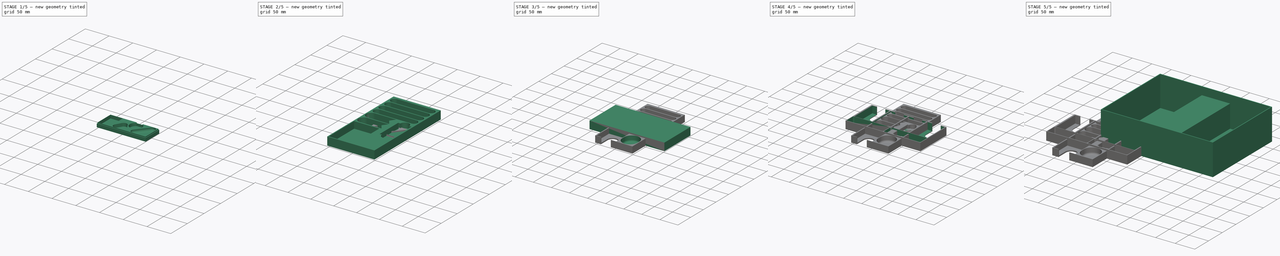
[diagram: build sequence overview — one tinted view per stage of 5, left to right]
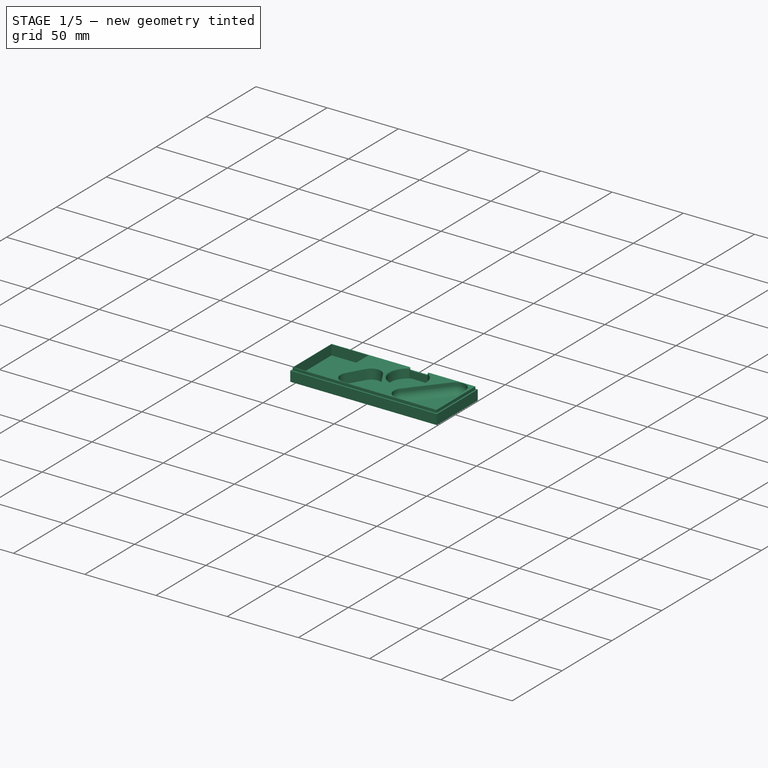
[diagram: stage 1 of 5 — iso view after this stage's code; geometry added in this stage tinted green]
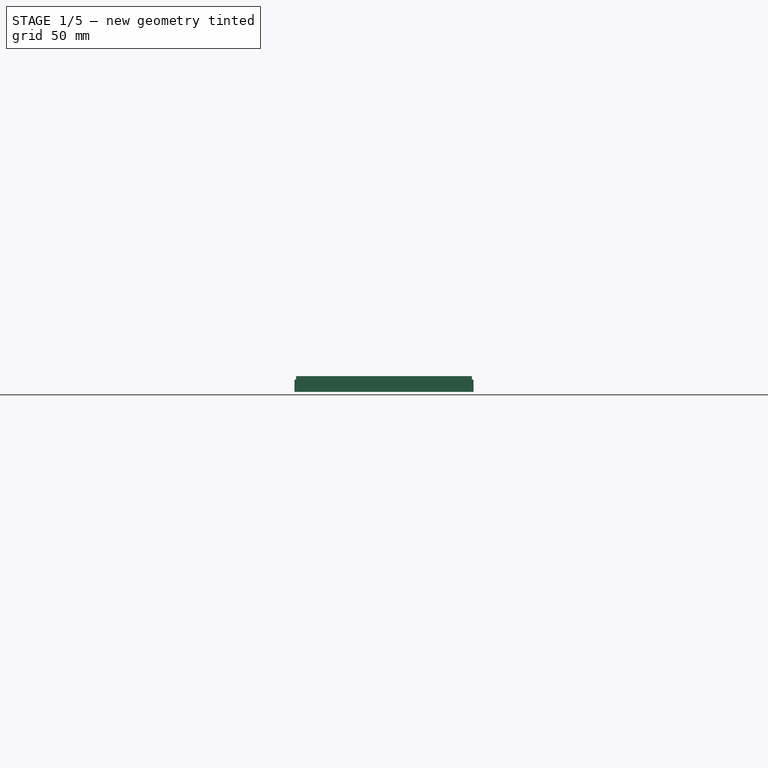
[diagram: stage 1 of 5 — front view after this stage's code; geometry added in this stage tinted green]
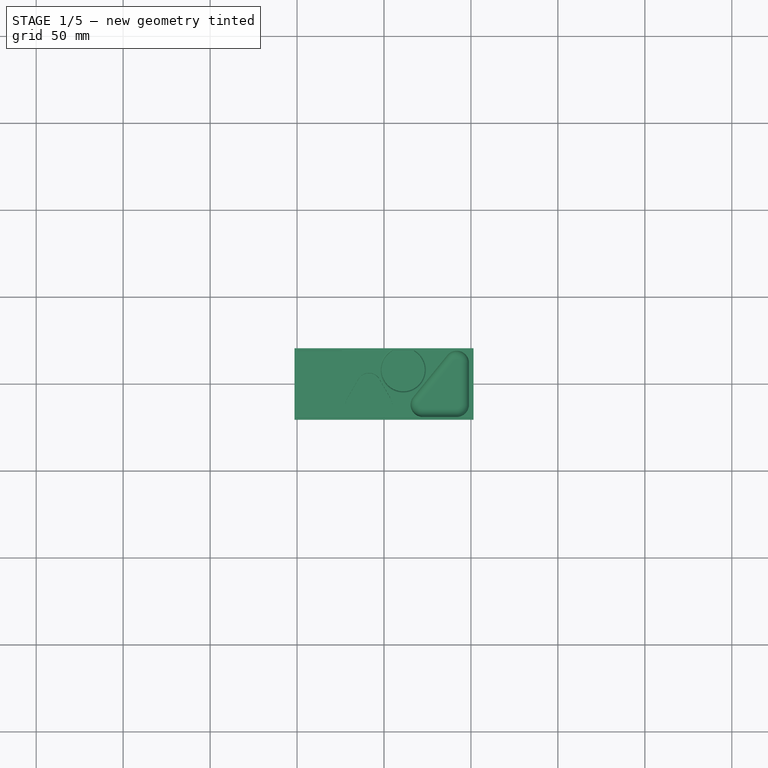
[diagram: stage 1 of 5 — top view after this stage's code; geometry added in this stage tinted green]
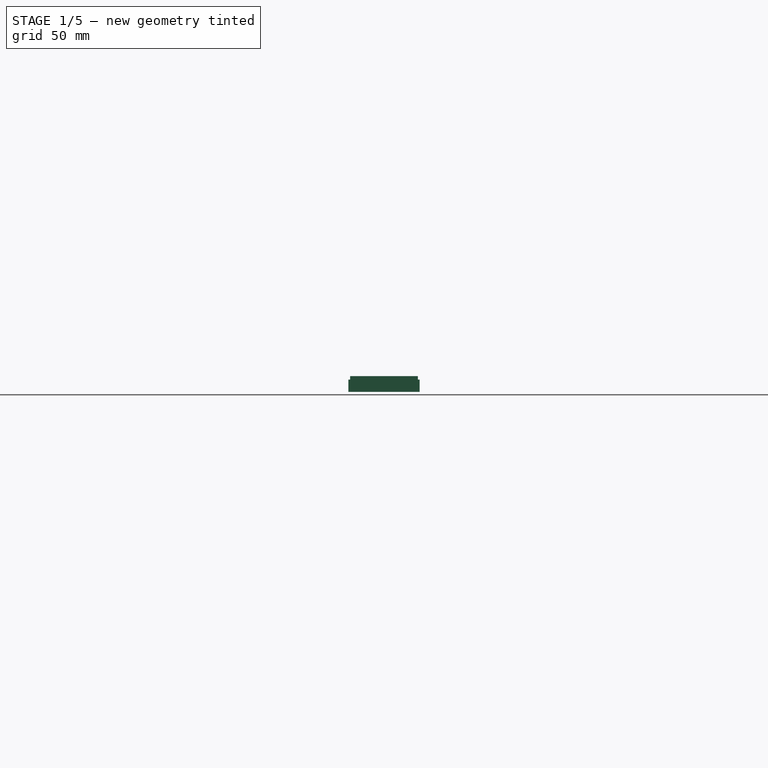
[diagram: stage 1 of 5 — right view after this stage's code; geometry added in this stage tinted green]
FCSTD DOCUMENT  (FreeCAD 0.19R24291 (Git))
Label: Genotype
License: All rights reserved
LicenseURL: http://en.wikipedia.org/wiki/All_rights_reserved
objects: Sketcher::SketchObject×25, PartDesign::Pocket×15, PartDesign::Fillet×9, PartDesign::Pad×8, PartDesign::Body×7, App::Part×5, App::DocumentObjectGroupPython×5, Spreadsheet::Sheet×4, Part::Feature×4, PartDesign::LinearPattern×2, Part::Box×1
note: 103 computed .brp shape members not serialized (recipe doc carries the construction recipe); baked Part::Feature solids carry a one-line shape summary decoded from their .brp

FEATURE [PartDesign::Body] Body005
  Group = -> [Pad006,Sketch014,Sketch017,Sketch015,Pocket008,LinearPattern,Pocket009,LinearPattern001,Sketch018,Pocket010,Sketch019,Pocket011,Sketch020,Pocket012,Sketch021,Pocket013,Fillet003,Fillet004,Fillet005,Fillet006]
  Origin = -> Origin010
  Tip = -> Fillet006
FEATURE [App::Part] Part004  label="DiceTray"
  Group = -> [Body005,Spreadsheet003]
  Origin = -> Origin009
  Placement = pos=(232,107,25) rot=(0,0,1;0rad)
FEATURE [Sketcher::SketchObject] Sketch023
  FullyConstrained = true
  MapMode = 5
  Placement = pos=(0,-20,0) rot=(1,0,0;1.5708rad)
FEATURE [Sketcher::SketchObject] Sketch024  label="TrayBaseSketch001"
  FullyConstrained = true
  MapMode = 5
  Support = -> [XY_Plane012]
  expr: Constraints[10] = <<TrayDimensions001>>.height
  expr: Constraints[9] = <<TrayDimensions001>>.width
  sketch-geometry (4):
    g0: LineSegment StartX=-51.5 StartY=20.5 StartZ=0 EndX=51.5 EndY=20.5 EndZ=0
    g1: LineSegment StartX=51.5 StartY=20.5 StartZ=0 EndX=51.5 EndY=-20.5 EndZ=0
    g2: LineSegment StartX=51.5 StartY=-20.5 StartZ=0 EndX=-51.5 EndY=-20.5 EndZ=0
    g3: LineSegment StartX=-51.5 StartY=-20.5 StartZ=0 EndX=-51.5 EndY=20.5 EndZ=0
  constraints (11):
    c: Coincident(g0,g1)
    c: Coincident(g1,g2)
    c: Coincident(g2,g3)
    c: Coincident(g3,g0)
    c: Horizontal(g0)
    c: Horizontal(g2)
    c: Vertical(g1)
    c: Vertical(g3)
    c: Symmetric(g0,g1,g-1)
    c: DistanceX(g0,g0) = 103
    c: DistanceY(g3,g3) = 41
FEATURE [PartDesign::Pad] Pad008
  Direction = (1,1,1)
  Length = 9
  Length2 = 100
  Profile = -> Sketch024
  Type = 0
  expr: Length = Spreadsheet004.thickness
FEATURE [Sketcher::SketchObject] Sketch025
  AttachmentOffset = pos=(11,0,2) rot=(0.408248,0.408248,0.816497;0rad)
  FullyConstrained = false
  MapMode = 2
  Placement = pos=(11,0,2) rot=(0,0,1;0rad)
  Support = -> [Pad008]
  expr: Constraints[80] = <<TrayDimensions001>>.width - 2 * <<TrayDimensions001>>.floor_thickness
  expr: Constraints[49] = <<TrayDimensions001>>.coin_diameter / 2
  expr: Constraints[31] = <<TrayDimensions001>>.floor_thickness
  expr: Constraints[7] = <<TrayDimensions001>>.trowels_height
  expr: Constraints[30] = <<TrayDimensions001>>.goal_token_diameter
  expr: Constraints[48] = <<TrayDimensions001>>.coin_diameter
  expr: Constraints[8] = <<TrayDimensions001>>.trowels_width
  sketch-geometry (31):
    g0: LineSegment StartX=-35.1782 StartY=-19 StartZ=0 EndX=-61.1782 EndY=-19 EndZ=0
    g1: LineSegment StartX=-61.1782 StartY=-19 StartZ=0 EndX=-61.1782 EndY=19 EndZ=0
    g2: LineSegment StartX=-61.1782 StartY=19 StartZ=0 EndX=-35.1782 EndY=19 EndZ=0
    g3: LineSegment StartX=-35.1782 StartY=19 StartZ=0 EndX=-35.1782 EndY=-19 EndZ=0
    g4: LineSegment StartX=-33.1782 StartY=-12 StartZ=0 EndX=-35.1782 EndY=-12 EndZ=0
    g5: ArcOfCircle CenterX=-19.6782 CenterY=-0.74167 CenterZ=0 NormalX=0 NormalY=0 NormalZ=1 AngleXU=0 Radius=7 StartAngle=0.523599 EndAngle=2.61799
    g6: ArcOfCircle CenterX=-13.1782 CenterY=-12 CenterZ=0 NormalX=0 NormalY=0 NormalZ=1 AngleXU=0 Radius=7 StartAngle=4.71239 EndAngle=6.80678
    g7: ArcOfCircle CenterX=-26.1782 CenterY=-12 CenterZ=0 NormalX=0 NormalY=0 NormalZ=1 AngleXU=0 Radius=7 StartAngle=2.61799 EndAngle=4.71239
    g8: LineSegment StartX=-13.616 StartY=2.75833 StartZ=0 EndX=-7.11603 EndY=-8.5 EndZ=0
    g9: LineSegment StartX=-13.1782 StartY=-19 StartZ=0 EndX=-26.1782 EndY=-19 EndZ=0
    g10: LineSegment StartX=-32.2404 StartY=-8.5 StartZ=0 EndX=-25.7404 EndY=2.75833 EndZ=0
    g11: LineSegment StartX=-26.1782 StartY=-12 StartZ=0 EndX=-13.1782 EndY=-12 EndZ=0
    g12: LineSegment StartX=-19.6782 StartY=-0.74167 StartZ=0 EndX=-26.1782 EndY=-12 EndZ=0
    g13: LineSegment StartX=-19.6782 StartY=-0.74167 StartZ=0 EndX=-13.1782 EndY=-12 EndZ=0
    g14: LineSegment StartX=-35.1782 StartY=-19 StartZ=0 EndX=-26.1782 EndY=-19 EndZ=0
    g15: ArcOfCircle CenterX=0 CenterY=8.17468 CenterZ=0 NormalX=0 NormalY=0 NormalZ=1 AngleXU=0 Radius=12.5 StartAngle=2.0944 EndAngle=7.33038
    g16: LineSegment StartX=-6.25 StartY=19 StartZ=0 EndX=-6.25 EndY=31.5 EndZ=0
    g17: LineSegment StartX=6.25 StartY=31.5 StartZ=0 EndX=6.25 EndY=19 EndZ=0
    g18: LineSegment StartX=6.25 StartY=31.5 StartZ=0 EndX=-6.25 EndY=31.5 EndZ=0
    g19: LineSegment StartX=-35.1782 StartY=19 StartZ=0 EndX=-6.25 EndY=19 EndZ=0
    g20: LineSegment StartX=-6.25 StartY=19 StartZ=0 EndX=6.25 EndY=19 EndZ=0
    g21: LineSegment StartX=-12.5574 StartY=0.924682 StartZ=0 EndX=-10.8253 EndY=1.92468 EndZ=0
    g22: ArcOfCircle CenterX=11.3058 CenterY=-12 CenterZ=0 NormalX=0 NormalY=0 NormalZ=1 AngleXU=0 Radius=7 StartAngle=2.45887 EndAngle=4.71239
    g23: LineSegment StartX=11.3058 StartY=-19 StartZ=0 EndX=30.8218 EndY=-19 EndZ=0
    g24: ArcOfCircle CenterX=30.8218 CenterY=-12 CenterZ=0 NormalX=0 NormalY=0 NormalZ=1 AngleXU=0 Radius=7 StartAngle=4.71239 EndAngle=6.28319
    g25: LineSegment StartX=37.8218 StartY=-12 StartZ=0 EndX=37.8218 EndY=12 EndZ=0
    g26: LineSegment StartX=5.87475 StartY=-7.58367 StartZ=0 EndX=25.3908 EndY=16.4163 EndZ=0
    g27: ArcOfCircle CenterX=30.8218 CenterY=12 CenterZ=0 NormalX=0 NormalY=0 NormalZ=1 AngleXU=0 Radius=7 StartAngle=0 EndAngle=2.45887
    g28: LineSegment StartX=6.25 StartY=19 StartZ=0 EndX=30.8218 EndY=19 EndZ=0
    g29: LineSegment StartX=-13.1782 StartY=-19 StartZ=0 EndX=11.3058 EndY=-19 EndZ=0
    g30: LineSegment StartX=9.69825 StartY=0.288374 StartZ=0 EndX=11.25 EndY=-0.973435 EndZ=0
  constraints (82):
    c: Coincident(g0,g1)
    c: Coincident(g1,g2)
    c: Coincident(g2,g3)
    c: Coincident(g3,g0)
    c: Horizontal(g0)
    c: Horizontal(g2)
    c: Vertical(g3)
    c: DistanceX(g2,g2) = 26
    c: DistanceY(g1,g1) = 38
    c: Symmetric(g1,g0,g-1)
    c: PointOnObject(g4,g3)
    c: Horizontal(g4)
    c: Horizontal(g9)
    c: Tangent(g5,g10) = 1.5708
    c: Tangent(g10,g7) = 1.5708
    c: Tangent(g8,g6) = 1.5708
    c: Tangent(g9,g7) = 1.5708
    c: Tangent(g9,g6) = 1.5708
    c: Tangent(g8,g5) = 1.5708
    c: Radius(g5) = 7
    c: Perpendicular(g4,g7) = 1.5708
    c: Coincident(g11,g7)
    c: Coincident(g11,g6)
    c: Equal(g5,g7)
    c: Coincident(g12,g5)
    c: Coincident(g12,g7)
    c: Coincident(g13,g5)
    c: Coincident(g13,g6)
    c: Equal(g12,g13)
    c: Equal(g11,g13)
    c: Distance(g12) = 13
    c: DistanceX(g4,g4) = 2
    c: Coincident(g14,g0)
    c: Coincident(g14,g7)
    c: Horizontal(g14)
    c: Coincident(g16,g15)
    c: Vertical(g16)
    c: Coincident(g17,g15)
    c: Vertical(g17)
    c: Coincident(g18,g17)
    c: Coincident(g18,g16)
    c: Horizontal(g18)
    c: Coincident(g19,g2)
    c: Coincident(g19,g15)
    c: Horizontal(g19)
    c: Coincident(g20,g15)
    c: Coincident(g15,g20)
    c: Horizontal(g20)
    c: Diameter(g15) = 25
    c: DistanceX(g20,g20) = 12.5
    c: Horizontal(g11)
    c: PointOnObject(g21,g8)
    c: PointOnObject(g21,g15)
    c: Perpendicular(g21,g8)
    c: Perpendicular(g15,g21)
    c: Equal(g4,g21)
    c: PointOnObject(g15,g-2)
    c: Horizontal(g23)
    c: Vertical(g25)
    c: Tangent(g27,g26) = 1.5708
    c: Tangent(g27,g25) = -1.5708
    c: Tangent(g25,g24) = -1.5708
    c: Tangent(g26,g22) = 1.5708
    c: Tangent(g24,g23) = -1.5708
    c: Equal(g22,g6)
    c: Equal(g27,g22)
    c: Equal(g24,g27)
    c: PointOnObject(g28,g27)
    c: Horizontal(g28)
    c: Tangent(g28,g27)
    c: Coincident(g29,g6)
    c: Coincident(g29,g22)
    c: Tangent(g29,g22)
    c: Horizontal(g29)
    c: PointOnObject(g30,g15)
    c: PointOnObject(g30,g26)
    c: Perpendicular(g26,g30)
    c: Perpendicular(g15,g30)
    c: Equal(g30,g21)
    c: Coincident(g28,g15)
    c: DistanceX(g1,g25) = 99
    c: Tangent(g23,g22) = -1.5708
FEATURE [PartDesign::Pocket] Pocket016
  BaseFeature = -> Pad008
  Length = 7
  Length2 = 0
  Profile = -> Sketch025
  Reversed = true
  Type = 0
  expr: Length = <<TrayDimensions001>>.pocket_depth
FEATURE [Sketcher::SketchObject] Sketch026
  ExternalGeometry = -> [Pocket016]
  FullyConstrained = false
  MapMode = 5
  Placement = pos=(17.25,0,0) rot=(0.57735,-0.57735,-0.57735;2.0944rad)
  Support = -> [Pocket016]
  expr: Constraints[24] = <<TrayDimensions001>>.lid_inset
  expr: Constraints[18] = <<TrayDimensions001>>.lid_inset
  sketch-geometry (10):
    g0: LineSegment StartX=51.5 StartY=20 StartZ=0 EndX=-51.5 EndY=20 EndZ=0
    g1: LineSegment StartX=-51.5 StartY=20 StartZ=0 EndX=-51.5 EndY=20 EndZ=0
    g2: LineSegment StartX=-51.5 StartY=20 StartZ=0 EndX=51.5 EndY=20 EndZ=0
    g3: LineSegment StartX=51.5 StartY=20 StartZ=0 EndX=51.5 EndY=20 EndZ=0
    g4: LineSegment StartX=52.5 StartY=19 StartZ=0 EndX=-52.5 EndY=19 EndZ=0
    g5: LineSegment StartX=-52.5 StartY=19 StartZ=0 EndX=-52.5 EndY=-19 EndZ=0
    g6: LineSegment StartX=-52.5 StartY=-19 StartZ=0 EndX=52.5 EndY=-19 EndZ=0
    g7: LineSegment StartX=52.5 StartY=-19 StartZ=0 EndX=52.5 EndY=19 EndZ=0
    g8: LineSegment StartX=-34.0153 StartY=19 StartZ=0 EndX=-34.0153 EndY=20 EndZ=0
    g9: LineSegment StartX=52.5 StartY=15.76 StartZ=0 EndX=51.5 EndY=15.76 EndZ=0
  constraints (26):
    c: Coincident(g0,g1)
    c: Coincident(g1,g2)
    c: Coincident(g2,g3)
    c: Coincident(g3,g0)
    c: Horizontal(g0)
    c: Horizontal(g2)
    c: Vertical(g1)
    c: Vertical(g3)
    c: Coincident(g0,g-4)
    c: Coincident(g1,g-6)
    c: Coincident(g4,g5)
    c: Coincident(g5,g6)
    c: Coincident(g6,g7)
    c: Coincident(g7,g4)
    c: Horizontal(g6)
    c: Vertical(g5)
    c: PointOnObject(g8,g4)
    c: PointOnObject(g8,g0)
    c: DistanceY(g8,g8) = 1
    c: Vertical(g8)
    c: Symmetric(g4,g6,g-1)
    c: PointOnObject(g9,g7)
    c: PointOnObject(g9,g3)
    c: Horizontal(g9)
    c: DistanceX(g9,g9) = 1
    c: Symmetric(g4,g4,g-2)
FEATURE [Spreadsheet::Sheet] Spreadsheet004  label="TrayDimensions001"
  cells = A1=Declared Dimensions; A2=trowels_width; B2(trowels_width)=38; A3=trowels_height; B3(trowels_height)=26; A4=goal_token_diameter; B4(goal_token_diameter)=13; A5=coin_diameter; B5(coin_diameter)=25; A6=lid_inset; B6(lid_inset)=1; A7=lid_depth; B7(lid_depth)=2; A8=token_depth; B8(token_depth)=10; A9=floor_thickness; B9(floor_thickness)=2; A10=token_extension; B10(token_extension)=3; A11=tray_width; B11(width)=103; A12=tray height; B12(height)=41; C12=207/5; A14=Calculated Dimensions; A15=tray thickness; B15(thickness)==floor_thickness + token_depth - token_extension; A16=pocket depth; B16(pocket_depth)==token_depth - token_extension; A17=lid thickness; B17(lid_thickness)==floor_thickness + token_extension + lid_depth
FEATURE [Sketcher::SketchObject] Sketch027
  FullyConstrained = true
  MapMode = 5
  Support = -> [XY_Plane014]
  expr: Constraints[9] = <<TrayDimensions001>>.height
  expr: Constraints[8] = <<TrayDimensions001>>.width
  sketch-geometry (4):
    g0: LineSegment StartX=-51.5 StartY=20.5 StartZ=0 EndX=51.5 EndY=20.5 EndZ=0
    g1: LineSegment StartX=51.5 StartY=20.5 StartZ=0 EndX=51.5 EndY=-20.5 EndZ=0
    g2: LineSegment StartX=51.5 StartY=-20.5 StartZ=0 EndX=-51.5 EndY=-20.5 EndZ=0
    g3: LineSegment StartX=-51.5 StartY=-20.5 StartZ=0 EndX=-51.5 EndY=20.5 EndZ=0
  constraints (10):
    c: Coincident(g0,g1)
    c: Coincident(g1,g2)
    c: Coincident(g2,g3)
    c: Coincident(g3,g0)
    c: Horizontal(g2)
    c: Vertical(g1)
    c: Symmetric(g0,g0,g-2)
    c: Symmetric(g0,g2,g-1)
    c: DistanceX(g0,g0) = 103
    c: DistanceY(g3,g3) = 41
FEATURE [PartDesign::Pad] Pad007
  Direction = (1,1,1)
  Length = 7
  Length2 = 100
  Profile = -> Sketch027
  Type = 0
  expr: Length = <<TrayDimensions001>>.lid_thickness
FEATURE [Sketcher::SketchObject] Sketch022
  FullyConstrained = true
  MapMode = 5
  Placement = pos=(0,0,7) rot=(0,0,1;0rad)
  Support = -> [Pad007]
  expr: Constraints[9] = <<TrayDimensions001>>.height - <<TrayDimensions001>>.lid_inset * 2
  expr: Constraints[8] = <<TrayDimensions001>>.width - <<TrayDimensions001>>.lid_inset * 2
  sketch-geometry (4):
    g0: LineSegment StartX=-50.5 StartY=19.5 StartZ=0 EndX=50.5 EndY=19.5 EndZ=0
    g1: LineSegment StartX=50.5 StartY=19.5 StartZ=0 EndX=50.5 EndY=-19.5 EndZ=0
    g2: LineSegment StartX=50.5 StartY=-19.5 StartZ=0 EndX=-50.5 EndY=-19.5 EndZ=0
    g3: LineSegment StartX=-50.5 StartY=-19.5 StartZ=0 EndX=-50.5 EndY=19.5 EndZ=0
  constraints (10):
    c: Coincident(g0,g1)
    c: Coincident(g1,g2)
    c: Coincident(g2,g3)
    c: Coincident(g3,g0)
    c: Horizontal(g2)
    c: Vertical(g1)
    c: Symmetric(g0,g2,g-1)
    c: Symmetric(g0,g0,g-2)
    c: DistanceX(g0,g0) = 101
    c: DistanceY(g3,g3) = 39
FEATURE [PartDesign::Pocket] Pocket014
  BaseFeature = -> Pad007
  Length = 5
  Length2 = 100
  Profile = -> Sketch022
  Type = 0
  expr: Length = <<TrayDimensions001>>.lid_thickness - <<TrayDimensions001>>.floor_thickness
FEATURE [PartDesign::Body] Body007  label="TrayLid"
  Group = -> [Sketch027,Pad007,Sketch022,Pocket014]
  Origin = -> Origin013
  Placement = pos=(0,0,14) rot=(0,1,0;3.14159rad)
  Tip = -> Pocket014
FEATURE [PartDesign::Fillet] Fillet007
  Base = -> Pocket016 [Edge17]
  BaseFeature = -> Pocket016
  Radius = 1
  SupportTransform = false
FEATURE [PartDesign::Fillet] Fillet008
  Base = -> Fillet007 [Face29]
  BaseFeature = -> Fillet007
  Radius = 5
  SupportTransform = false
FEATURE [Sketcher::SketchObject] Sketch028
  ExternalGeometry = -> [Fillet008]
  FullyConstrained = true
  MapMode = 5
  Placement = pos=(0,0,9) rot=(0,0,1;0rad)
  sketch-geometry (8):
    g0: LineSegment StartX=-51.5 StartY=20.5 StartZ=0 EndX=51.5 EndY=20.5 EndZ=0
    g1: LineSegment StartX=51.5 StartY=20.5 StartZ=0 EndX=51.5 EndY=-20.5 EndZ=0
    g2: LineSegment StartX=51.5 StartY=-20.5 StartZ=0 EndX=-51.5 EndY=-20.5 EndZ=0
    g3: LineSegment StartX=-51.5 StartY=-20.5 StartZ=0 EndX=-51.5 EndY=20.5 EndZ=0
    g4: LineSegment StartX=-50.5 StartY=19.5 StartZ=0 EndX=50.5 EndY=19.5 EndZ=0
    g5: LineSegment StartX=50.5 StartY=19.5 StartZ=0 EndX=50.5 EndY=-19.5 EndZ=0
    g6: LineSegment StartX=50.5 StartY=-19.5 StartZ=0 EndX=-50.5 EndY=-19.5 EndZ=0
    g7: LineSegment StartX=-50.5 StartY=-19.5 StartZ=0 EndX=-50.5 EndY=19.5 EndZ=0
  constraints (22):
    c: Coincident(g0,g1)
    c: Coincident(g1,g2)
    c: Coincident(g2,g3)
    c: Coincident(g3,g0)
    c: Horizontal(g0)
    c: Horizontal(g2)
    c: Vertical(g1)
    c: Vertical(g3)
    c: Coincident(g4,g5)
    c: Coincident(g5,g6)
    c: Coincident(g6,g7)
    c: Coincident(g7,g4)
    c: Horizontal(g4)
    c: Horizontal(g6)
    c: Vertical(g5)
    c: Vertical(g7)
    c: DistanceX(g0,g4) = 1
    c: DistanceY(g4,g0) = 1
    c: DistanceY(g1,g5) = 1
    c: DistanceX(g5,g1) = 1
    c: Coincident(g0,g-4)
    c: Coincident(g1,g-6)
FEATURE [PartDesign::Pocket] Pocket017
  BaseFeature = -> Fillet008
  Length = 2
  Length2 = 100
  Profile = -> Sketch028
  Type = 0
  expr: Length = <<TrayDimensions001>>.lid_depth
FEATURE [PartDesign::Body] Body006  label="TrayBase"
  Group = -> [Sketch024,Pad008,Sketch025,Pocket016,Sketch026,Sketch023,Fillet007,Fillet008,Sketch028,Pocket017]
  Origin = -> Origin012
  Tip = -> Pocket017
FEATURE [App::Part] Part005  label="ExtendedPlayerTray"
  Group = -> [Body006,Body007,Spreadsheet004]
  Origin = -> Origin011
  Placement = pos=(232,49,43) rot=(0,0,1;0rad)
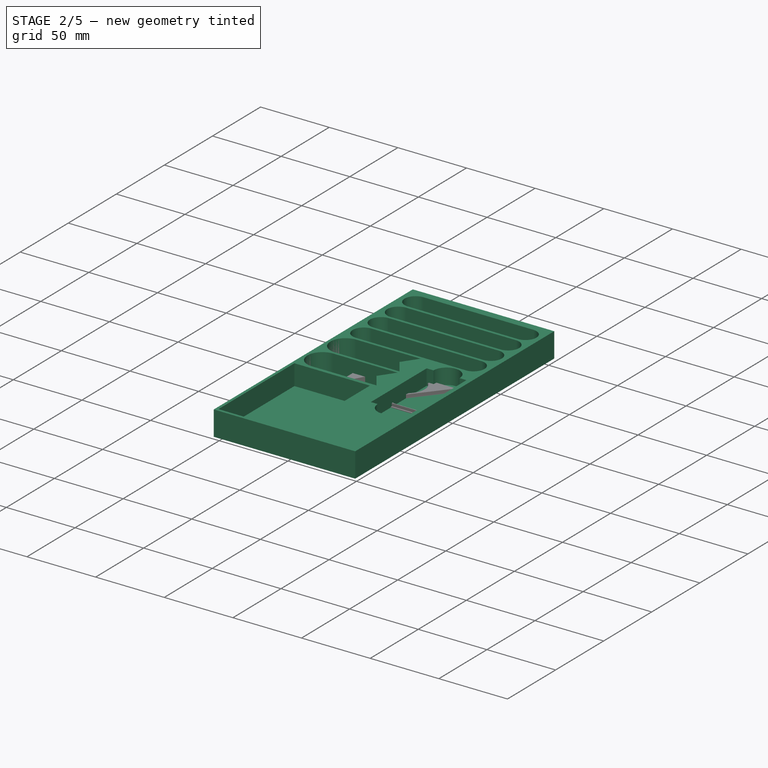
[diagram: stage 2 of 5 — iso view after this stage's code; geometry added in this stage tinted green]
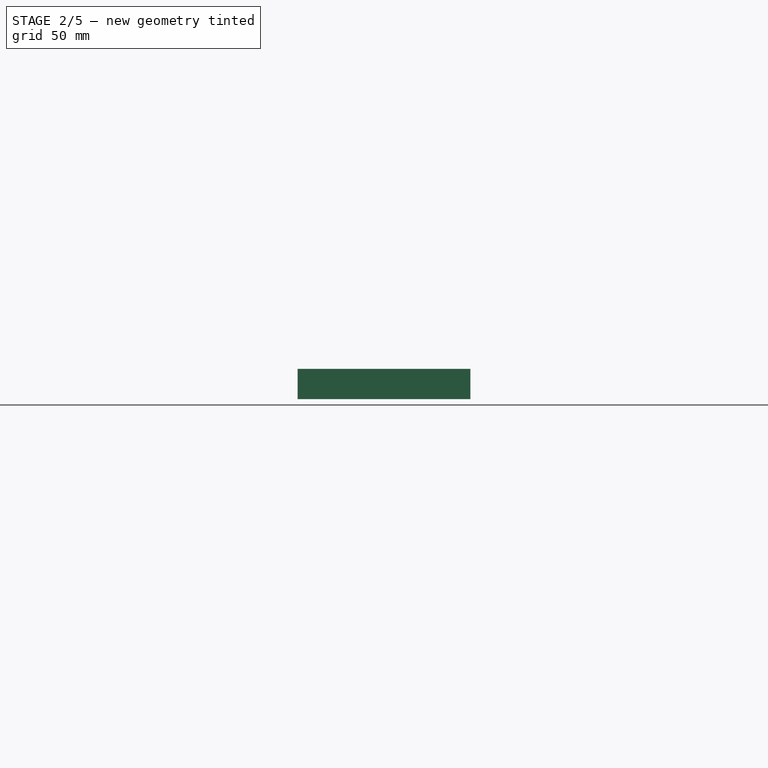
[diagram: stage 2 of 5 — front view after this stage's code; geometry added in this stage tinted green]
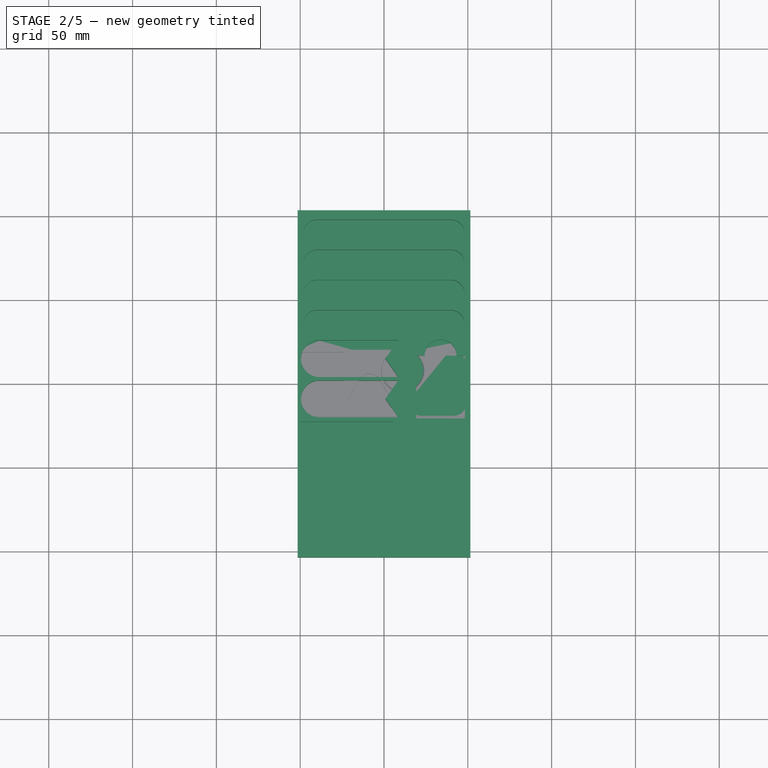
[diagram: stage 2 of 5 — top view after this stage's code; geometry added in this stage tinted green]
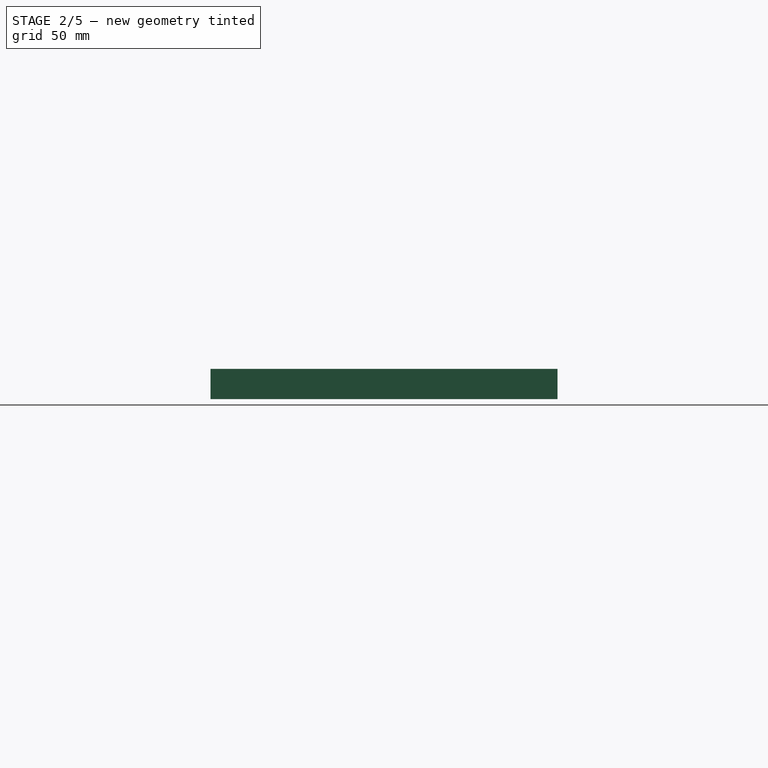
[diagram: stage 2 of 5 — right view after this stage's code; geometry added in this stage tinted green]
FEATURE [PartDesign::Body] Body004
  Group = -> [Sketch012,Pad005,Sketch013,Pocket007,Sketch011,Pocket006,Fillet,Fillet001,Fillet002]
  Origin = -> Origin008
  Tip = -> Fillet002
FEATURE [App::Part] Part003  label="4CardTray"
  Group = -> [Spreadsheet002,Body004]
  Origin = -> Origin007
  Placement = pos=(232,107,3) rot=(0,0,1;1.5708rad)
FEATURE [Part::Feature] trajectory_line
  shape: bbox 2e-07 x 2e-07 x 120 mm, 0 faces, 0 solids (baked)
FEATURE [App::DocumentObjectGroupPython] SimpleGroup  # scripted group (container) (typed FeaturePython)
  AnimationStepTime = 0
  AnimationSteps = 50
  Distance = 120
  Group = -> [trajectory_line]
  Revolutions = 0
FEATURE [Part::Feature] trajectory_line001
  shape: bbox 200 x 2e-07 x 2e-07 mm, 0 faces, 0 solids (baked)
FEATURE [App::DocumentObjectGroupPython] SimpleGroup001  # scripted group (container) (typed FeaturePython)
  AnimationStepTime = 0
  AnimationSteps = 20
  Distance = 200
  Group = -> [trajectory_line001]
  Revolutions = 0
FEATURE [Part::Feature] trajectory_line002
  shape: bbox 2e-07 x 2e-07 x 20 mm, 0 faces, 0 solids (baked)
FEATURE [App::DocumentObjectGroupPython] SimpleGroup002  # scripted group (container) (typed FeaturePython)
  AnimationStepTime = 0
  AnimationSteps = 20
  Distance = 20
  Group = -> [trajectory_line002]
  Revolutions = 0.25
FEATURE [Part::Feature] trajectory_line003
  shape: bbox 2e-07 x 2e-07 x 20 mm, 0 faces, 0 solids (baked)
FEATURE [App::DocumentObjectGroupPython] SimpleGroup003  # scripted group (container) (typed FeaturePython)
  AnimationStepTime = 0
  AnimationSteps = 20
  Distance = 100
  Group = -> [trajectory_line003]
  Revolutions = 0
FEATURE [App::DocumentObjectGroupPython] ExplodedAssembly  # scripted group (container) (typed FeaturePython)
  AnimationStep = 0
  CurrentTrajectory = 0
  Group = -> [SimpleGroup,SimpleGroup001,SimpleGroup002,SimpleGroup003]
  InAnimation = false
  RemoveAllTrajectories = false
  ResetAnimation = false
FEATURE [Sketcher::SketchObject] Sketch014
  FullyConstrained = true
  MapMode = 5
  Support = -> [XY_Plane010]
  expr: Constraints[8] = <<DiceDimensions>>.height
  expr: Constraints[9] = <<DiceDimensions>>.width
  sketch-geometry (4):
    g0: LineSegment StartX=-51.5 StartY=103.5 StartZ=0 EndX=51.5 EndY=103.5 EndZ=0
    g1: LineSegment StartX=51.5 StartY=103.5 StartZ=0 EndX=51.5 EndY=-103.5 EndZ=0
    g2: LineSegment StartX=51.5 StartY=-103.5 StartZ=0 EndX=-51.5 EndY=-103.5 EndZ=0
    g3: LineSegment StartX=-51.5 StartY=-103.5 StartZ=0 EndX=-51.5 EndY=103.5 EndZ=0
  constraints (10):
    c: Coincident(g0,g1)
    c: Coincident(g1,g2)
    c: Coincident(g2,g3)
    c: Coincident(g3,g0)
    c: Horizontal(g0)
    c: Vertical(g1)
    c: Symmetric(g0,g2,g-1)
    c: Symmetric(g1,g2,g-2)
    c: DistanceX(g0,g0) = 103
    c: DistanceY(g3,g3) = 207
FEATURE [PartDesign::Pad] Pad006
  Direction = (1,1,1)
  Length = 18
  Length2 = 100
  Profile = -> Sketch014
  Type = 0
  expr: Length = <<DiceDimensions>>.die_size + <<DiceDimensions>>.floor_thickness
FEATURE [Spreadsheet::Sheet] Spreadsheet003  label="DiceDimensions"
  cells = A1=Declared Dimensions; A2=height; B2(height)=103; A3=width; B3(width)=207; A4=die size; B4(die_size)=16; A5=banner_width; B5(banner_width)=22; C5=18.7; A6=floor_thickness; B6(floor_thickness)=2; A7=banner angle; B7(banner_angle)=110; A8=banner_height; B8(banner_height)=47; C8=46.2; A9=wall_thickness; B9(wall_thickness)=2; A10=die_slot_thickness; B10(die_slot_thickness)=23; C10=21.5; A11=die_slot_width; B11(die_slot_width)=29; C11=27.5; A12=plot_height; B12(plot_height)=79; C12=77.59999999999999; A13=plot_width; B13(plot_width)=55; C13=53.8; A14=plot_thickness (all); B14(plot_thickness)=15; C14=13.5; A15=finger_width; B15(finger_width)=19; A24=Calculated Dimensions; A25=thickness; B25(thickness)==floor_thickness + die_size
FEATURE [Sketcher::SketchObject] Sketch015
  AttachmentOffset = pos=(0,90,0) rot=(0,0,1;0rad)
  ExternalGeometry = -> [Pad006]
  FullyConstrained = true
  MapMode = 5
  Placement = pos=(0,90,18) rot=(0,0,1;0rad)
  Support = -> [Pad006]
  expr: Constraints[5] = <<DiceDimensions>>.die_size
  expr: Constraints[4] = <<DiceDimensions>>.die_size * 5
  sketch-geometry (4):
    g0: ArcOfCircle CenterX=-40 CenterY=-4e-16 CenterZ=0 NormalX=0 NormalY=0 NormalZ=1 AngleXU=0 Radius=8 StartAngle=1.5708 EndAngle=4.71239
    g1: ArcOfCircle CenterX=40 CenterY=-4.5e-15 CenterZ=0 NormalX=0 NormalY=0 NormalZ=1 AngleXU=0 Radius=8 StartAngle=4.71239 EndAngle=7.85398
    g2: LineSegment StartX=-40 StartY=-8 StartZ=0 EndX=40 EndY=-8 EndZ=0
    g3: LineSegment StartX=-40 StartY=8 StartZ=0 EndX=40 EndY=8 EndZ=0
  constraints (8):
    c: Tangent(g0,g3) = 1.5708
    c: Tangent(g0,g2) = -1.5708
    c: Tangent(g2,g1) = -1.5708
    c: Tangent(g3,g1) = 1.5708
    c: DistanceX(g3,g3) = 80
    c: DistanceY(g0,g0) = 16
    c: Symmetric(g0,g1,g-2)
    c: Symmetric(g0,g0,g-1)
FEATURE [Sketcher::SketchObject] Sketch017
  FullyConstrained = true
  MapMode = 5
  Placement = pos=(-15,15,18) rot=(0,0,1;0rad)
  expr: Constraints[8] = <<DiceDimensions>>.banner_angle
  expr: Constraints[11] = <<DiceDimensions>>.banner_height
  expr: Constraints[9] = <<DiceDimensions>>.banner_width
  sketch-geometry (5):
    g0: LineSegment StartX=-23.5 StartY=11 StartZ=0 EndX=23.5 EndY=11 EndZ=0
    g1: LineSegment StartX=23.5 StartY=11 StartZ=0 EndX=15.7977 EndY=0 EndZ=0
    g2: LineSegment StartX=15.7977 StartY=0 StartZ=0 EndX=23.5 EndY=-11 EndZ=0
    g3: LineSegment StartX=23.5 StartY=-11 StartZ=0 EndX=-23.5 EndY=-11 EndZ=0
    g4: ArcOfCircle CenterX=-23.5 CenterY=-8e-16 CenterZ=0 NormalX=0 NormalY=0 NormalZ=1 AngleXU=0 Radius=11 StartAngle=1.5708 EndAngle=4.71239
  constraints (13):
    c: Coincident(g0,g1)
    c: Coincident(g1,g2)
    c: Coincident(g2,g3)
    c: Horizontal(g3)
    c: Tangent(g3,g4) = 1.5708
    c: Coincident(g4,g0)
    c: Equal(g0,g3)
    c: Equal(g1,g2)
    c: Angle(g2,g1) = 1.91986
    c: DistanceY(g3,g0) = 22
    c: Symmetric(g0,g0,g-2)
    c: DistanceX(g0,g0) = 47
    c: Symmetric(g0,g3,g-1)
FEATURE [PartDesign::Pocket] Pocket008
  BaseFeature = -> Pad006
  Length = 16
  Length2 = 100
  Profile = -> Sketch015
  Type = 0
  expr: Length = <<DiceDimensions>>.die_size
FEATURE [PartDesign::LinearPattern] LinearPattern
  BaseFeature = -> Pocket008
  Direction = -> Y_Axis010
  Length = 54
  Occurrences = 4
  Originals = -> [Pocket008]
  Reversed = true
  expr: Length = <<DiceDimensions>>.die_size * 3 + <<DiceDimensions>>.wall_thickness * 3
FEATURE [PartDesign::Pocket] Pocket009
  BaseFeature = -> LinearPattern
  Length = 16
  Length2 = 100
  Profile = -> Sketch017
  Type = 0
  expr: Length = <<DiceDimensions>>.die_size
FEATURE [PartDesign::LinearPattern] LinearPattern001
  BaseFeature = -> Pocket009
  Direction = -> Y_Axis010
  Length = 24
  Occurrences = 2
  Originals = -> [Pocket009]
  Reversed = true
  expr: Length = <<DiceDimensions>>.banner_width + <<DiceDimensions>>.wall_thickness
FEATURE [Sketcher::SketchObject] Sketch018
  FullyConstrained = false
  MapMode = 5
  Placement = pos=(0,0,18) rot=(0,0,1;0rad)
  Support = -> [LinearPattern001]
  expr: Constraints[2] = <<DiceDimensions>>.die_slot_width
  expr: Constraints[3] = <<DiceDimensions>>.die_slot_width * 2
  expr: Constraints[20] = <<DiceDimensions>>.finger_width
  sketch-geometry (8):
    g0: LineSegment StartX=48.2558 StartY=16.8692 StartZ=0 EndX=48.2558 EndY=-41.1308 EndZ=0
    g1: LineSegment StartX=19.2558 StartY=-41.1308 StartZ=0 EndX=19.2558 EndY=16.8692 EndZ=0
    g2: ArcOfCircle CenterX=33.7558 CenterY=16.8692 CenterZ=0 NormalX=0 NormalY=0 NormalZ=1 AngleXU=0 Radius=9.5 StartAngle=-9e-16 EndAngle=3.14159
    g3: ArcOfCircle CenterX=33.7558 CenterY=-41.1308 CenterZ=0 NormalX=0 NormalY=0 NormalZ=1 AngleXU=0 Radius=9.5 StartAngle=3.14159 EndAngle=6.28319
    g4: LineSegment StartX=24.2558 StartY=16.8692 StartZ=0 EndX=19.2558 EndY=16.8692 EndZ=0
    g5: LineSegment StartX=43.2558 StartY=16.8692 StartZ=0 EndX=48.2558 EndY=16.8692 EndZ=0
    g6: LineSegment StartX=48.2558 StartY=-41.1308 StartZ=0 EndX=43.2558 EndY=-41.1308 EndZ=0
    g7: LineSegment StartX=24.2558 StartY=-41.1308 StartZ=0 EndX=19.2558 EndY=-41.1308 EndZ=0
  constraints (24):
    c: Vertical(g0)
    c: Vertical(g1)
    c: DistanceX(g1,g0) = 29
    c: DistanceY(g1,g1) = 58
    c: Coincident(g4,g2)
    c: Coincident(g4,g1)
    c: Coincident(g5,g2)
    c: Coincident(g5,g0)
    c: Horizontal(g5)
    c: Coincident(g6,g0)
    c: Coincident(g6,g3)
    c: Horizontal(g6)
    c: Coincident(g7,g3)
    c: Coincident(g7,g1)
    c: Horizontal(g7)
    c: Perpendicular(g1,g4)
    c: Equal(g4,g7)
    c: Equal(g7,g6)
    c: Equal(g6,g5)
    c: Equal(g2,g3)
    c: Diameter(g2) = 19
    c: Perpendicular(g2,g4)
    c: Perpendicular(g2,g5)
    c: Perpendicular(g3,g7)
FEATURE [PartDesign::Pocket] Pocket010
  BaseFeature = -> LinearPattern001
  Length = 11.5
  Length2 = 100
  Profile = -> Sketch018
  Type = 0
  expr: Length = <<DiceDimensions>>.die_slot_thickness / 2
FEATURE [Sketcher::SketchObject] Sketch019
  ExternalGeometry = -> [Pocket010]
  FullyConstrained = true
  MapMode = 5
  Placement = pos=(0,0,18) rot=(0,0,1;0rad)
  Support = -> [Pocket010]
  expr: Constraints[8] = <<DiceDimensions>>.plot_width
  expr: Constraints[9] = <<DiceDimensions>>.plot_height
  expr: Constraints[16] = <<DiceDimensions>>.wall_thickness
  expr: Constraints[17] = <<DiceDimensions>>.wall_thickness
  sketch-geometry (6):
    g0: LineSegment StartX=-49.5 StartY=-22.5 StartZ=0 EndX=5.5 EndY=-22.5 EndZ=0
    g1: LineSegment StartX=5.5 StartY=-22.5 StartZ=0 EndX=5.5 EndY=-101.5 EndZ=0
    g2: LineSegment StartX=5.5 StartY=-101.5 StartZ=0 EndX=-49.5 EndY=-101.5 EndZ=0
    g3: LineSegment StartX=-49.5 StartY=-101.5 StartZ=0 EndX=-49.5 EndY=-22.5 EndZ=0
    g4: LineSegment StartX=-49.5 StartY=-101.5 StartZ=0 EndX=-49.5 EndY=-103.5 EndZ=0
    g5: LineSegment StartX=-49.5 StartY=-101.5 StartZ=0 EndX=-51.5 EndY=-101.5 EndZ=0
  constraints (18):
    c: Coincident(g0,g1)
    c: Coincident(g1,g2)
    c: Coincident(g2,g3)
    c: Coincident(g3,g0)
    c: Horizontal(g0)
    c: Horizontal(g2)
    c: Vertical(g1)
    c: Vertical(g3)
    c: DistanceX(g0,g0) = 55
    c: DistanceY(g3,g3) = 79
    c: Coincident(g4,g2)
    c: PointOnObject(g4,g-3)
    c: Vertical(g4)
    c: Coincident(g5,g2)
    c: PointOnObject(g5,g-4)
    c: Horizontal(g5)
    c: DistanceX(g5,g5) = 2
    c: DistanceY(g4,g4) = 2
FEATURE [PartDesign::Pocket] Pocket011
  BaseFeature = -> Pocket010
  Length = 15
  Length2 = 100
  Profile = -> Sketch019
  Type = 0
  expr: Length = <<DiceDimensions>>.plot_thickness
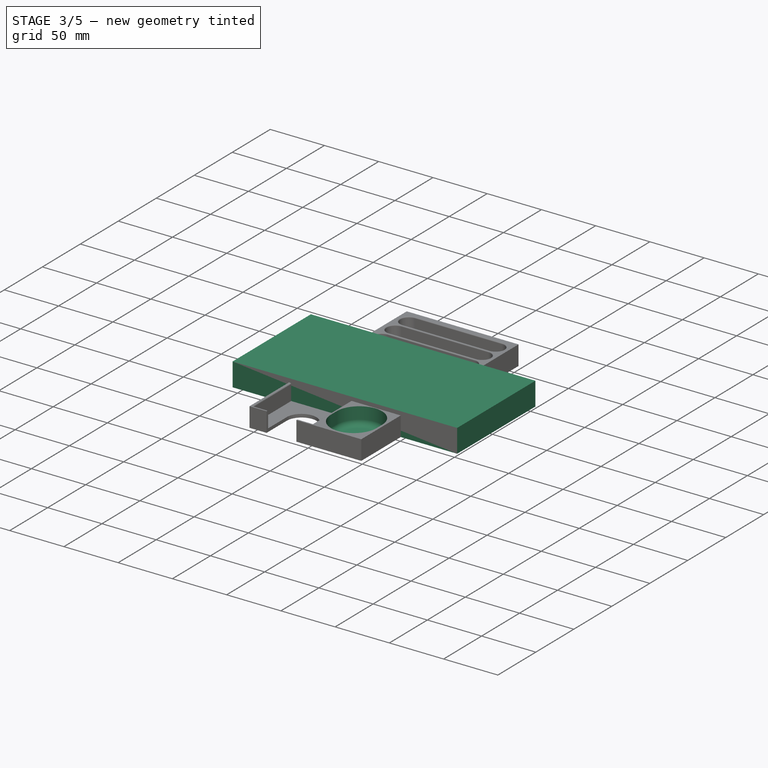
[diagram: stage 3 of 5 — iso view after this stage's code; geometry added in this stage tinted green]
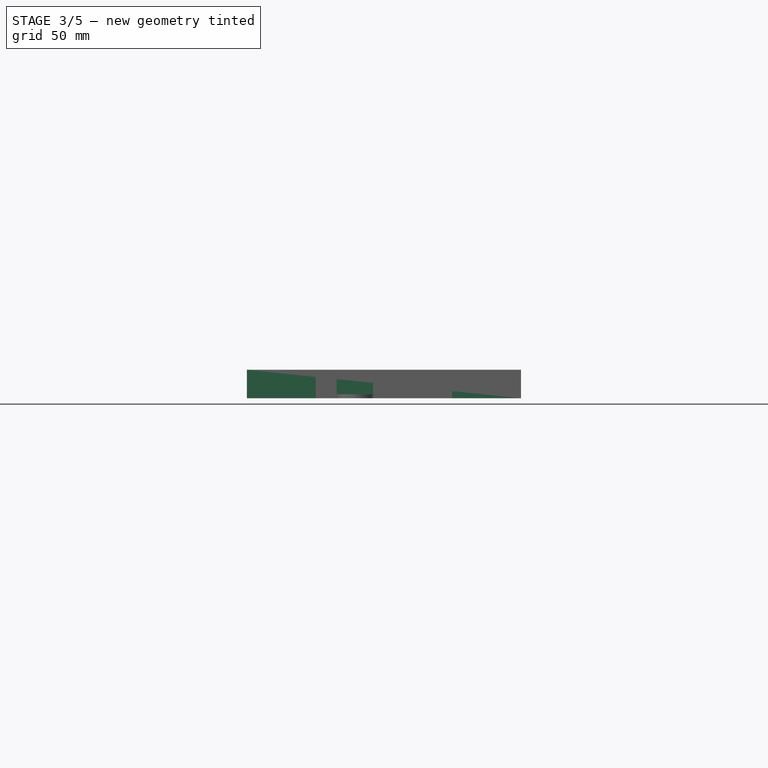
[diagram: stage 3 of 5 — front view after this stage's code; geometry added in this stage tinted green]
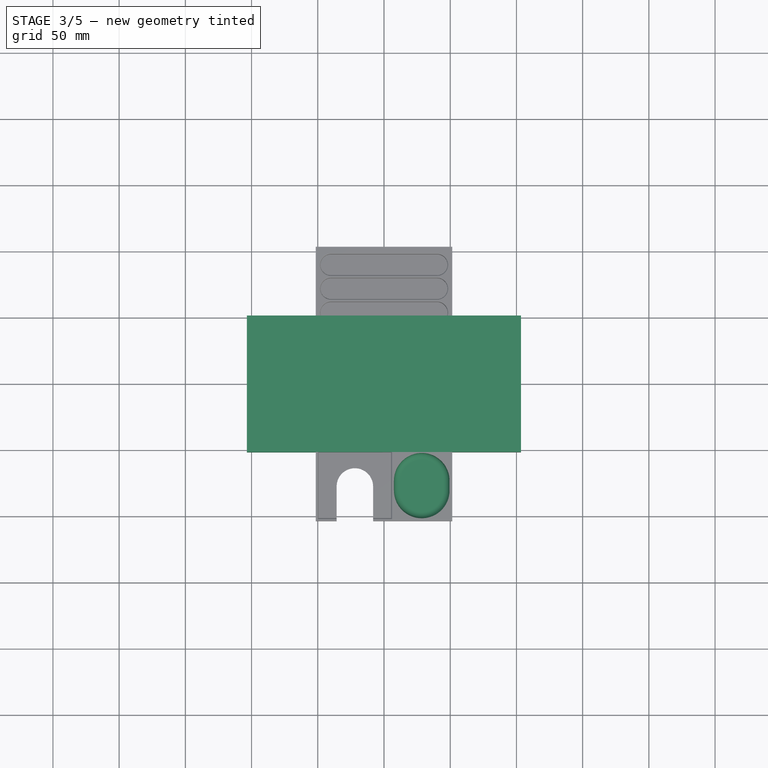
[diagram: stage 3 of 5 — top view after this stage's code; geometry added in this stage tinted green]
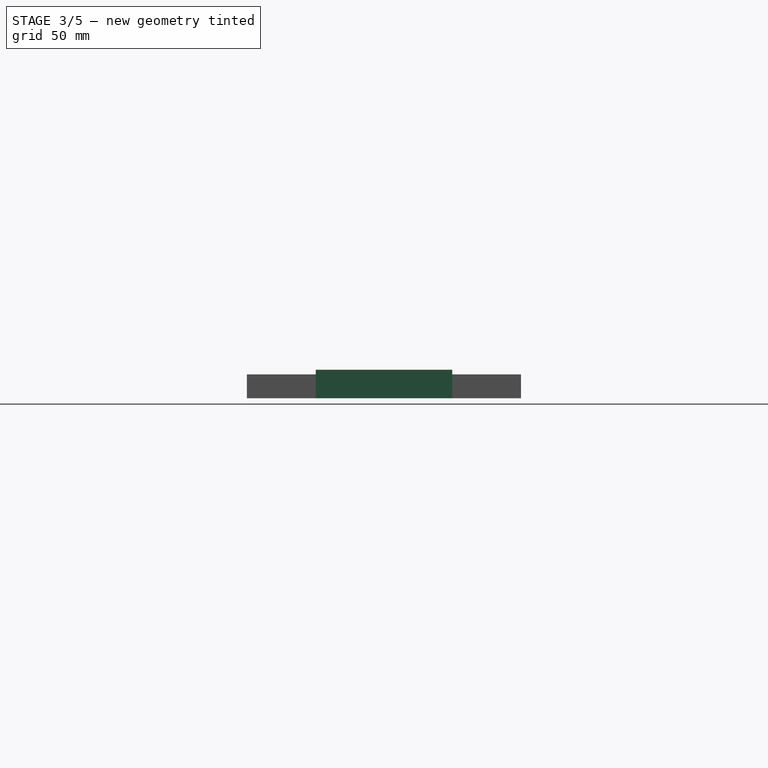
[diagram: stage 3 of 5 — right view after this stage's code; geometry added in this stage tinted green]
FEATURE [PartDesign::Body] Body001  label="Tray"
  Group = -> [Sketch002,Pad002,Sketch003,Pocket,Sketch004,Pocket001,Sketch007,Pocket003]
  Origin = -> Origin003
  Tip = -> Pocket003
FEATURE [App::Part] Part001  label="SmallPlayerTray"
  Group = -> [Body001,Body002,Spreadsheet]
  Origin = -> Origin002
  Placement = pos=(232,19,43) rot=(0,0,1;0rad)
FEATURE [Spreadsheet::Sheet] Spreadsheet002  label="CardDimensions001"
  cells = A1=Declared Dimensions; A2=height; B2(height)=103; A3=width; B3(width)=207; A4=card height; B4(card_height)=71; A5=card width; B5(card_width)=48; A6=plant card stack thickness; B6(plant_card_thickness)=20; C6=15.7; A7=tool card stack thickness; B7(tool_card_thickness)=8; A8=apprentice card stack thickness; B8(apprentice_card_thickness)=4; C8=3.9; A9=solo card stack thickness; B9(solo_card_thickness)=4; C9=4; A10=floor thickness; B10(floor_thickness)=1.5; A11=wall thickness; B11(wall_thickness)=1.5; A17=Calculated Dimensions; A18=tray thickness; B18(thickness)==max(plant_card_thickness; tool_card_thickness; apprentice_card_thickness) + floor_thickness; A19=finger slot height; B19(slot_height)==card_height / 3; A20=finger slot width; B20(slot_width)==card_width / 2
FEATURE [Sketcher::SketchObject] Sketch012
  FullyConstrained = true
  MapMode = 5
  Support = -> [XY_Plane008]
  expr: Constraints[9] = <<CardDimensions001>>.height
  expr: Constraints[8] = <<CardDimensions001>>.width
  sketch-geometry (4):
    g0: LineSegment StartX=-103.5 StartY=51.5 StartZ=0 EndX=103.5 EndY=51.5 EndZ=0
    g1: LineSegment StartX=103.5 StartY=51.5 StartZ=0 EndX=103.5 EndY=-51.5 EndZ=0
    g2: LineSegment StartX=103.5 StartY=-51.5 StartZ=0 EndX=-103.5 EndY=-51.5 EndZ=0
    g3: LineSegment StartX=-103.5 StartY=-51.5 StartZ=0 EndX=-103.5 EndY=51.5 EndZ=0
  constraints (10):
    c: Coincident(g0,g1)
    c: Coincident(g1,g2)
    c: Coincident(g2,g3)
    c: Coincident(g3,g0)
    c: Horizontal(g2)
    c: Vertical(g1)
    c: Symmetric(g0,g2,g-1)
    c: Symmetric(g0,g0,g-2)
    c: DistanceX(g0,g0) = 207
    c: DistanceY(g3,g3) = 103
FEATURE [PartDesign::Pad] Pad005
  Direction = (1,1,1)
  Length = 21.5
  Length2 = 100
  Profile = -> Sketch012
  Type = 0
  expr: Length = <<CardDimensions001>>.thickness
FEATURE [Sketcher::SketchObject] Sketch020
  ExternalGeometry = -> [Pocket011]
  FullyConstrained = true
  MapMode = 5
  Placement = pos=(0,0,3) rot=(0,0,1;0rad)
  Support = -> [Pocket011]
  expr: Constraints[14] = <<DiceDimensions>>.plot_width / 2
  expr: Constraints[15] = <<DiceDimensions>>.plot_height / 3
  sketch-geometry (6):
    g0: ArcOfCircle CenterX=-22 CenterY=-103.5 CenterZ=0 NormalX=0 NormalY=0 NormalZ=1 AngleXU=0 Radius=13.75 StartAngle=3.14159 EndAngle=6.28319
    g1: ArcOfCircle CenterX=-22 CenterY=-77.1667 CenterZ=0 NormalX=0 NormalY=0 NormalZ=1 AngleXU=0 Radius=13.75 StartAngle=-9e-16 EndAngle=3.14159
    g2: LineSegment StartX=-8.25 StartY=-103.5 StartZ=0 EndX=-8.25 EndY=-77.1667 EndZ=0
    g3: LineSegment StartX=-35.75 StartY=-103.5 StartZ=0 EndX=-35.75 EndY=-77.1667 EndZ=0
    g4: LineSegment StartX=-35.75 StartY=-77.1667 StartZ=0 EndX=-49.5 EndY=-77.1667 EndZ=0
    g5: LineSegment StartX=-8.25 StartY=-77.1667 StartZ=0 EndX=5.5 EndY=-77.1667 EndZ=0
  constraints (16):
    c: Tangent(g0,g3) = 1.5708
    c: Tangent(g0,g2) = -1.5708
    c: Tangent(g2,g1) = -1.5708
    c: Tangent(g3,g1) = 1.5708
    c: Vertical(g2)
    c: Equal(g0,g1)
    c: PointOnObject(g0,g-3)
    c: Coincident(g4,g1)
    c: PointOnObject(g4,g-5)
    c: Horizontal(g4)
    c: Coincident(g5,g1)
    c: PointOnObject(g5,g-6)
    c: Horizontal(g5)
    c: Equal(g4,g5)
    c: DistanceX(g1,g1) = 27.5
    c: DistanceY(g3,g3) = 26.3333
FEATURE [PartDesign::Pocket] Pocket012
  BaseFeature = -> Pocket011
  Length = 100
  Length2 = 100
  Profile = -> Sketch020
  Reversed = true
  Type = 4
FEATURE [Sketcher::SketchObject] Sketch021
  ExternalGeometry = -> [Pocket012]
  FullyConstrained = false
  MapMode = 5
  Placement = pos=(0,0,18) rot=(0,0,1;0rad)
  Support = -> [Pocket012]
  expr: Constraints[17] = <<DiceDimensions>>.wall_thickness
  expr: Constraints[19] = <<DiceDimensions>>.wall_thickness
  expr: Constraints[18] = <<DiceDimensions>>.wall_thickness
  expr: Constraints[20] = <<DiceDimensions>>.wall_thickness
  sketch-geometry (8):
    g0: ArcOfCircle CenterX=28.5 CenterY=-80.5041 CenterZ=0 NormalX=0 NormalY=0 NormalZ=1 AngleXU=0 Radius=21 StartAngle=3.14159 EndAngle=6.28319
    g1: ArcOfCircle CenterX=28.5 CenterY=-73.203 CenterZ=0 NormalX=0 NormalY=0 NormalZ=1 AngleXU=0 Radius=21 StartAngle=1e-16 EndAngle=3.14159
    g2: LineSegment StartX=49.5 StartY=-80.5041 StartZ=0 EndX=49.5 EndY=-73.203 EndZ=0
    g3: LineSegment StartX=7.5 StartY=-80.5041 StartZ=0 EndX=7.5 EndY=-73.203 EndZ=0
    g4: LineSegment StartX=28.0835 StartY=-101.5 StartZ=0 EndX=28.0835 EndY=-103.5 EndZ=0
    g5: LineSegment StartX=7.5 StartY=-80.5041 StartZ=0 EndX=5.5 EndY=-80.5041 EndZ=0
    g6: LineSegment StartX=49.5 StartY=-80.5041 StartZ=0 EndX=51.5 EndY=-80.5041 EndZ=0
    g7: LineSegment StartX=31.896 StartY=-52.4794 StartZ=0 EndX=32.2195 EndY=-50.5057 EndZ=0
  constraints (23):
    c: Tangent(g0,g3) = 1.5708
    c: Tangent(g0,g2) = -1.5708
    c: Tangent(g2,g1) = -1.5708
    c: Tangent(g3,g1) = 1.5708
    c: Vertical(g2)
    c: Equal(g0,g1)
    c: PointOnObject(g4,g0)
    c: PointOnObject(g4,g-4)
    c: Vertical(g4)
    c: Coincident(g5,g0)
    c: PointOnObject(g5,g-3)
    c: Coincident(g6,g0)
    c: PointOnObject(g6,g-5)
    c: Horizontal(g6)
    c: PointOnObject(g7,g1)
    c: PointOnObject(g7,g-6)
    c: Perpendicular(g-3,g5)
    c: DistanceX(g5,g5) = 2
    c: DistanceX(g6,g6) = 2
    c: DistanceY(g4,g4) = 2
    c: Distance(g7) = 2
    c: Perpendicular(g-6,g7)
    c: Perpendicular(g1,g7)
FEATURE [PartDesign::Pocket] Pocket013
  BaseFeature = -> Pocket012
  Length = 16
  Length2 = 100
  Profile = -> Sketch021
  Type = 0
  expr: Length = <<DiceDimensions>>.thickness - <<DiceDimensions>>.floor_thickness
FEATURE [PartDesign::Fillet] Fillet003
  Base = -> Pocket013 [Edge18,Edge20,Edge22,Edge24,Edge23]
  BaseFeature = -> Pocket013
  Radius = 1
  SupportTransform = false
FEATURE [PartDesign::Fillet] Fillet004
  Base = -> Fillet003 [Edge85]
  BaseFeature = -> Fillet003
  Radius = 5
  SupportTransform = false
FEATURE [PartDesign::Fillet] Fillet005
  Base = -> Fillet004 [Edge27,Edge30]
  BaseFeature = -> Fillet004
  Radius = 1
  SupportTransform = false
FEATURE [PartDesign::Fillet] Fillet006
  Base = -> Fillet005 [Edge47,Edge48,Edge50,Edge49,Edge43,Edge44,Edge46,Edge45,Edge39,Edge40,Edge42,Edge41,Edge51,Edge52,Edge54,Edge53]
  BaseFeature = -> Fillet005
  Radius = 0.75
  SupportTransform = false
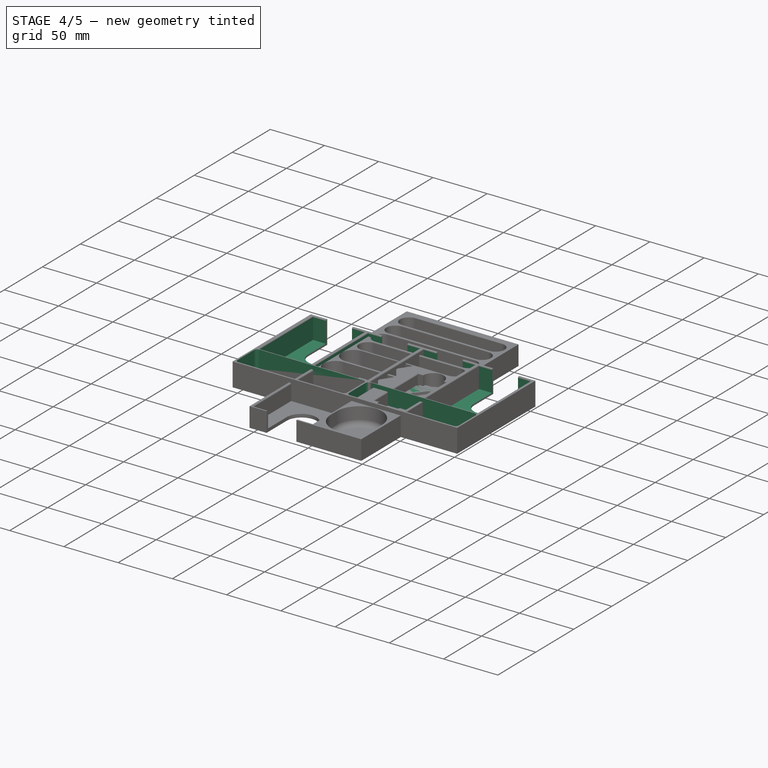
[diagram: stage 4 of 5 — iso view after this stage's code; geometry added in this stage tinted green]
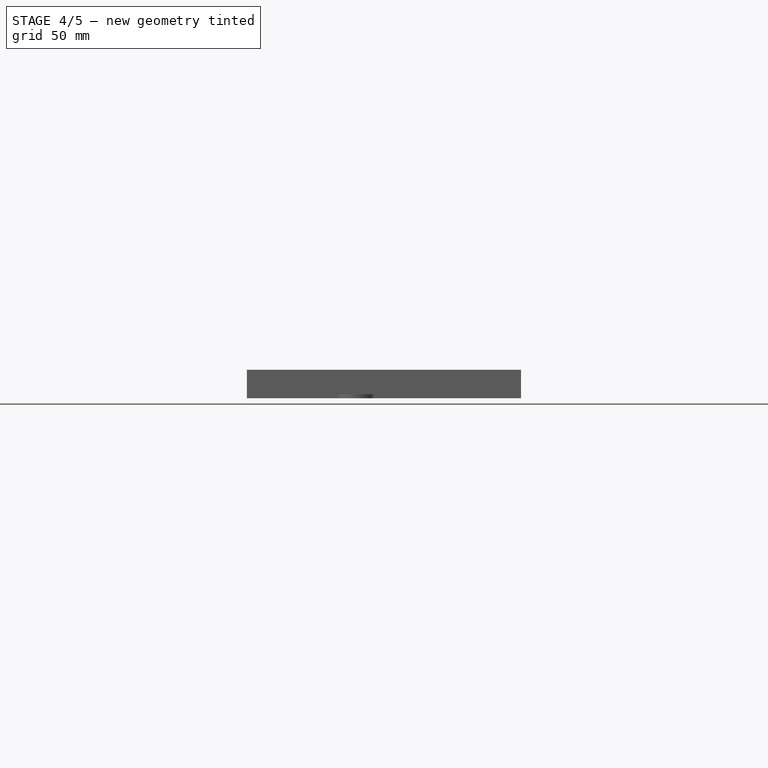
[diagram: stage 4 of 5 — front view after this stage's code; geometry added in this stage tinted green]
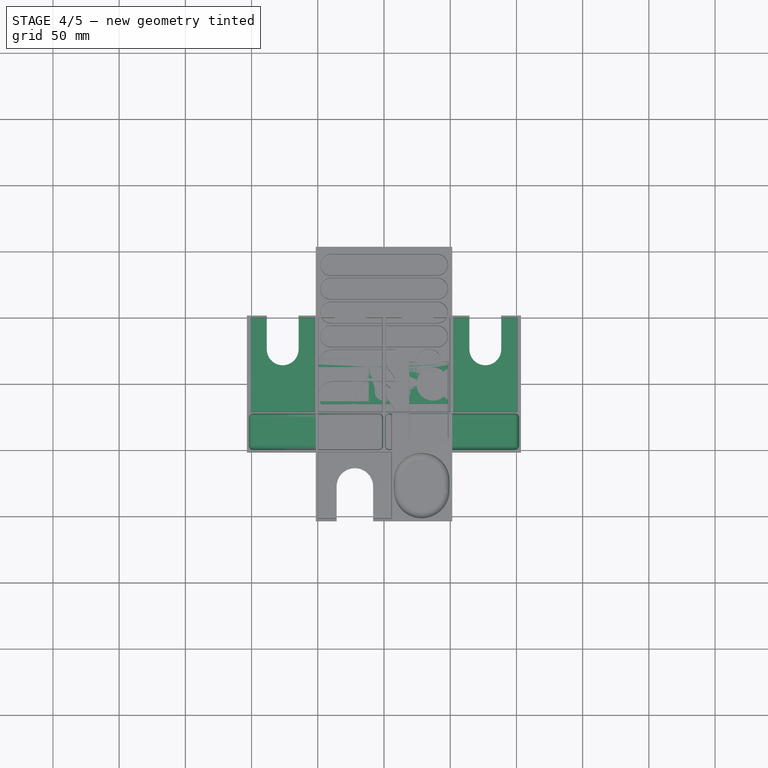
[diagram: stage 4 of 5 — top view after this stage's code; geometry added in this stage tinted green]
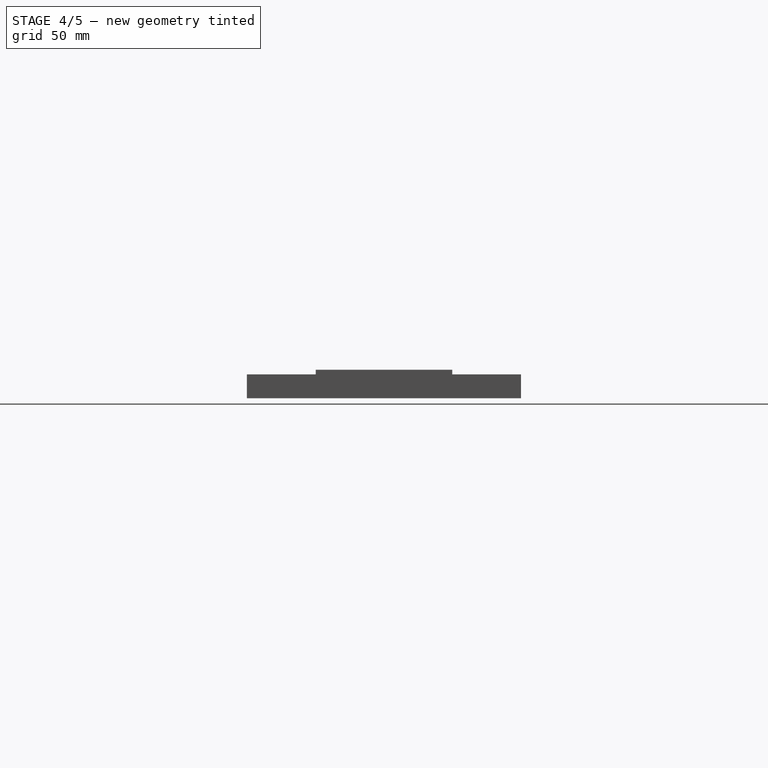
[diagram: stage 4 of 5 — right view after this stage's code; geometry added in this stage tinted green]
FEATURE [PartDesign::Body] Body
  Group = -> [Sketch001,Pad,Sketch,Pad001]
  Origin = -> Origin001
  Tip = -> Pad001
FEATURE [App::Part] Part  label="Game Box"
  Group = -> [Body]
  Origin = -> Origin
FEATURE [Sketcher::SketchObject] Sketch002  label="TrayBaseSketch"
  FullyConstrained = true
  MapMode = 5
  Support = -> [XY_Plane003]
  expr: Constraints[9] = <<TrayDimensions>>.width
  expr: Constraints[10] = <<TrayDimensions>>.height
  sketch-geometry (4):
    g0: LineSegment StartX=-51.5 StartY=15 StartZ=0 EndX=51.5 EndY=15 EndZ=0
    g1: LineSegment StartX=51.5 StartY=15 StartZ=0 EndX=51.5 EndY=-15 EndZ=0
    g2: LineSegment StartX=51.5 StartY=-15 StartZ=0 EndX=-51.5 EndY=-15 EndZ=0
    g3: LineSegment StartX=-51.5 StartY=-15 StartZ=0 EndX=-51.5 EndY=15 EndZ=0
  constraints (11):
    c: Coincident(g0,g1)
    c: Coincident(g1,g2)
    c: Coincident(g2,g3)
    c: Coincident(g3,g0)
    c: Horizontal(g0)
    c: Horizontal(g2)
    c: Vertical(g1)
    c: Vertical(g3)
    c: Symmetric(g0,g1,g-1)
    c: DistanceX(g0,g0) = 103
    c: DistanceY(g3,g3) = 30
FEATURE [PartDesign::Pad] Pad002
  Direction = (1,1,1)
  Length = 9
  Length2 = 100
  Profile = -> Sketch002
  Type = 0
  expr: Length = Spreadsheet.thickness
FEATURE [Sketcher::SketchObject] Sketch003
  AttachmentOffset = pos=(0,0,2) rot=(0.408248,0.408248,0.816497;0rad)
  ExternalGeometry = -> [Pad002]
  FullyConstrained = false
  MapMode = 2
  Placement = pos=(0,0,2) rot=(0,0,1;0rad)
  Support = -> [Pad002]
  expr: Constraints[9] = <<TrayDimensions>>.trowels_width
  expr: Constraints[10] = <<TrayDimensions>>.trowels_height
  expr: Constraints[63] = <<TrayDimensions>>.goal_token_diameter
  expr: Constraints[8] = <<TrayDimensions>>.coin_diameter / 2
  sketch-geometry (23):
    g0: LineSegment StartX=-11.5 StartY=-13 StartZ=0 EndX=-49.5 EndY=-13 EndZ=0
    g1: LineSegment StartX=-49.5 StartY=-13 StartZ=0 EndX=-49.5 EndY=13 EndZ=0
    g2: LineSegment StartX=-49.5 StartY=13 StartZ=0 EndX=-11.5 EndY=13 EndZ=0
    g3: LineSegment StartX=-11.5 StartY=13 StartZ=0 EndX=-11.5 EndY=-13 EndZ=0
    g4: Circle CenterX=37 CenterY=0 CenterZ=0 NormalX=0 NormalY=0 NormalZ=1 AngleXU=0 Radius=12.5
    g5: LineSegment StartX=-35.7688 StartY=-13 StartZ=0 EndX=-35.7688 EndY=-15 EndZ=0
    g6: LineSegment StartX=-49.5 StartY=-2.46822 StartZ=0 EndX=-51.5 EndY=-2.46822 EndZ=0
    g7: LineSegment StartX=-33.4329 StartY=13 StartZ=0 EndX=-33.4329 EndY=15 EndZ=0
    g8: LineSegment StartX=24.5 StartY=15 StartZ=0 EndX=24.5 EndY=-15 EndZ=0
    g9: LineSegment StartX=-7 StartY=-5.62917 StartZ=0 EndX=-11.5 EndY=-5.62917 EndZ=0
    g10: LineSegment StartX=20 StartY=-5.62917 StartZ=0 EndX=24.5 EndY=-5.62917 EndZ=0
    g11: LineSegment StartX=49.5 StartY=0 StartZ=0 EndX=51.5 EndY=0 EndZ=0
    g12: ArcOfCircle CenterX=6.5 CenterY=5.62917 CenterZ=0 NormalX=0 NormalY=0 NormalZ=1 AngleXU=0 Radius=7 StartAngle=0.523599 EndAngle=2.61799
    g13: ArcOfCircle CenterX=13 CenterY=-5.62917 CenterZ=0 NormalX=0 NormalY=0 NormalZ=1 AngleXU=0 Radius=7 StartAngle=4.71239 EndAngle=6.80678
    g14: ArcOfCircle CenterX=-1.8e-15 CenterY=-5.62917 CenterZ=0 NormalX=0 NormalY=0 NormalZ=1 AngleXU=0 Radius=7 StartAngle=2.61799 EndAngle=4.71239
    g15: LineSegment StartX=12.5622 StartY=9.12917 StartZ=0 EndX=19.0622 EndY=-2.12917 EndZ=0
    g16: LineSegment StartX=13 StartY=-12.6292 StartZ=0 EndX=-3.6e-15 EndY=-12.6292 EndZ=0
    g17: LineSegment StartX=-6.06218 StartY=-2.12917 StartZ=0 EndX=0.437822 EndY=9.12917 EndZ=0
    g18: LineSegment StartX=6.5 StartY=5.62917 StartZ=0 EndX=6.5 EndY=0 EndZ=0
    g19: LineSegment StartX=-1.8e-15 StartY=-5.62917 StartZ=0 EndX=13 EndY=-5.62917 EndZ=0
    g20: LineSegment StartX=-1.8e-15 StartY=-5.62917 StartZ=0 EndX=-1.8e-15 EndY=0 EndZ=0
    g21: LineSegment StartX=6.5 StartY=5.62917 StartZ=0 EndX=-1.8e-15 EndY=-5.62917 EndZ=0
    g22: LineSegment StartX=6.5 StartY=5.62917 StartZ=0 EndX=13 EndY=-5.62917 EndZ=0
  constraints (64):
    c: Coincident(g0,g1)
    c: Coincident(g1,g2)
    c: Coincident(g2,g3)
    c: Coincident(g3,g0)
    c: Horizontal(g0)
    c: Horizontal(g2)
    c: Vertical(g3)
    c: PointOnObject(g4,g-1)
    c: Radius(g4) = 12.5
    c: DistanceX(g2,g2) = 38
    c: DistanceY(g1,g1) = 26
    c: Symmetric(g1,g0,g-1)
    c: PointOnObject(g5,g0)
    c: PointOnObject(g5,g-5)
    c: PointOnObject(g6,g1)
    c: PointOnObject(g6,g-4)
    c: Horizontal(g6)
    c: PointOnObject(g7,g2)
    c: PointOnObject(g7,g-3)
    c: Vertical(g7)
    c: Vertical(g5)
    c: Equal(g6,g7)
    c: PointOnObject(g8,g-3)
    c: PointOnObject(g8,g-5)
    c: Vertical(g8)
    c: Tangent(g4,g8)
    c: PointOnObject(g9,g3)
    c: Horizontal(g9)
    c: PointOnObject(g10,g8)
    c: Horizontal(g10)
    c: Equal(g10,g9)
    c: PointOnObject(g11,g4)
    c: PointOnObject(g11,g-6)
    c: Horizontal(g11)
    c: Perpendicular(g4,g11)
    c: Equal(g11,g6)
    c: Horizontal(g16)
    c: Tangent(g12,g17) = 1.5708
    c: Tangent(g17,g14) = 1.5708
    c: Tangent(g15,g13) = 1.5708
    c: Tangent(g16,g14) = 1.5708
    c: Tangent(g16,g13) = 1.5708
    c: Tangent(g15,g12) = 1.5708
    c: Radius(g12) = 7
    c: Perpendicular(g9,g14) = 1.5708
    c: Perpendicular(g10,g13) = 1.5708
    c: PointOnObject(g18,g-1)
    c: Coincident(g18,g12)
    c: Vertical(g18)
    c: Coincident(g19,g14)
    c: Coincident(g19,g13)
    c: Parallel(g-1,g19)
    c: Coincident(g20,g14)
    c: PointOnObject(g20,g-1)
    c: Vertical(g20)
    c: Equal(g20,g18)
    c: Equal(g12,g14)
    c: Coincident(g21,g12)
    c: Coincident(g21,g14)
    c: Coincident(g22,g12)
    c: Coincident(g22,g13)
    c: Equal(g21,g22)
    c: Equal(g19,g22)
    c: Distance(g21) = 13
FEATURE [PartDesign::Pocket] Pocket
  BaseFeature = -> Pad002
  Length = 7
  Length2 = 0
  Profile = -> Sketch003
  Reversed = true
  Type = 0
  expr: Length = <<TrayDimensions>>.pocket_depth
FEATURE [Sketcher::SketchObject] Sketch013
  ExternalGeometry = -> [Pad005]
  FullyConstrained = true
  MapMode = 5
  Placement = pos=(0,0,21.5) rot=(0,0,1;0rad)
  Support = -> [Pad005]
  expr: Constraints[54] = <<CardDimensions001>>.wall_thickness
  expr: Constraints[33] = <<CardDimensions001>>.card_width
  expr: Constraints[32] = <<CardDimensions001>>.card_height
  sketch-geometry (35):
    g0: LineSegment StartX=49.5 StartY=50 StartZ=0 EndX=1.5 EndY=50 EndZ=0
    g1: LineSegment StartX=1.5 StartY=50 StartZ=0 EndX=1.5 EndY=-21 EndZ=0
    g2: LineSegment StartX=1.5 StartY=-21 StartZ=0 EndX=49.5 EndY=-21 EndZ=0
    g3: LineSegment StartX=49.5 StartY=-21 StartZ=0 EndX=49.5 EndY=50 EndZ=0
    g4: LineSegment StartX=-49.5 StartY=50 StartZ=0 EndX=-1.5 EndY=50 EndZ=0
    g5: LineSegment StartX=-1.5 StartY=50 StartZ=0 EndX=-1.5 EndY=-21 EndZ=0
    g6: LineSegment StartX=-1.5 StartY=-21 StartZ=0 EndX=-49.5 EndY=-21 EndZ=0
    g7: LineSegment StartX=-49.5 StartY=-21 StartZ=0 EndX=-49.5 EndY=50 EndZ=0
    g8: LineSegment StartX=-100.5 StartY=50 StartZ=0 EndX=-52.5 EndY=50 EndZ=0
    g9: LineSegment StartX=-52.5 StartY=50 StartZ=0 EndX=-52.5 EndY=-21 EndZ=0
    g10: LineSegment StartX=-52.5 StartY=-21 StartZ=0 EndX=-100.5 EndY=-21 EndZ=0
    g11: LineSegment StartX=-100.5 StartY=-21 StartZ=0 EndX=-100.5 EndY=50 EndZ=0
    g12: LineSegment StartX=-102 StartY=-22.5 StartZ=0 EndX=-0.75 EndY=-22.5 EndZ=0
    g13: LineSegment StartX=-0.75 StartY=-22.5 StartZ=0 EndX=-0.75 EndY=-50 EndZ=0
    g14: LineSegment StartX=-0.75 StartY=-50 StartZ=0 EndX=-102 EndY=-50 EndZ=0
    g15: LineSegment StartX=-102 StartY=-50 StartZ=0 EndX=-102 EndY=-22.5 EndZ=0
    g16: LineSegment StartX=-103.5 StartY=50 StartZ=0 EndX=-100.5 EndY=50 EndZ=0
    g17: LineSegment StartX=-52.5 StartY=50 StartZ=0 EndX=-49.5 EndY=50 EndZ=0
    g18: LineSegment StartX=-1.5 StartY=50 StartZ=0 EndX=1.5 EndY=50 EndZ=0
    g19: LineSegment StartX=49.5 StartY=50 StartZ=0 EndX=49.5 EndY=51.5 EndZ=0
    g20: LineSegment StartX=-0.75 StartY=-50 StartZ=0 EndX=-0.75 EndY=-51.5 EndZ=0
    g21: LineSegment StartX=52.5 StartY=50 StartZ=0 EndX=100.5 EndY=50 EndZ=0
    g22: LineSegment StartX=100.5 StartY=50 StartZ=0 EndX=100.5 EndY=-21 EndZ=0
    g23: LineSegment StartX=100.5 StartY=-21 StartZ=0 EndX=52.5 EndY=-21 EndZ=0
    g24: LineSegment StartX=52.5 StartY=-21 StartZ=0 EndX=52.5 EndY=50 EndZ=0
    g25: LineSegment StartX=49.5 StartY=50 StartZ=0 EndX=52.5 EndY=50 EndZ=0
    g26: LineSegment StartX=100.5 StartY=50 StartZ=0 EndX=103.5 EndY=50 EndZ=0
    g27: LineSegment StartX=0.75 StartY=-22.5 StartZ=0 EndX=102 EndY=-22.5 EndZ=0
    g28: LineSegment StartX=102 StartY=-22.5 StartZ=0 EndX=102 EndY=-50 EndZ=0
    g29: LineSegment StartX=102 StartY=-50 StartZ=0 EndX=0.75 EndY=-50 EndZ=0
    g30: LineSegment StartX=0.75 StartY=-50 StartZ=0 EndX=0.75 EndY=-22.5 EndZ=0
    g31: LineSegment StartX=-102 StartY=-50 StartZ=0 EndX=-103.5 EndY=-50 EndZ=0
    g32: LineSegment StartX=-0.75 StartY=-50 StartZ=0 EndX=0.75 EndY=-50 EndZ=0
    g33: LineSegment StartX=102 StartY=-50 StartZ=0 EndX=103.5 EndY=-50 EndZ=0
    g34: LineSegment StartX=-1.5 StartY=-21 StartZ=0 EndX=-1.5 EndY=-22.5 EndZ=0
  constraints (100):
    c: Coincident(g0,g1)
    c: Coincident(g1,g2)
    c: Coincident(g2,g3)
    c: Coincident(g3,g0)
    c: Horizontal(g0)
    c: Horizontal(g2)
    c: Vertical(g1)
    c: Vertical(g3)
    c: Coincident(g4,g5)
    c: Coincident(g5,g6)
    c: Coincident(g6,g7)
    c: Coincident(g7,g4)
    c: Horizontal(g4)
    c: Horizontal(g6)
    c: Vertical(g5)
    c: Vertical(g7)
    c: Coincident(g8,g9)
    c: Coincident(g9,g10)
    c: Coincident(g10,g11)
    c: Coincident(g11,g8)
    c: Horizontal(g8)
    c: Horizontal(g10)
    c: Vertical(g9)
    c: Vertical(g11)
    c: Coincident(g12,g13)
    c: Coincident(g13,g14)
    c: Coincident(g14,g15)
    c: Coincident(g15,g12)
    c: Horizontal(g12)
    c: Horizontal(g14)
    c: Vertical(g13)
    c: Vertical(g15)
    c: DistanceY(g11,g11) = 71
    c: DistanceX(g8,g8) = 48
    c: Equal(g11,g7)
    c: Equal(g11,g1)
    c: Equal(g4,g8)
    c: Equal(g0,g4)
    c: Coincident(g16,g8)
    c: Coincident(g17,g4)
    c: Coincident(g18,g4)
    c: Coincident(g18,g0)
    c: Perpendicular(g-4,g16)
    c: PointOnObject(g16,g-4)
    c: Coincident(g17,g8)
    c: Perpendicular(g9,g17)
    c: Perpendicular(g5,g18)
    c: PointOnObject(g19,g-3)
    c: Vertical(g19)
    c: Coincident(g20,g13)
    c: PointOnObject(g20,g-5)
    c: Perpendicular(g14,g20)
    c: Equal(g18,g17)
    c: Equal(g17,g16)
    c: DistanceY(g19,g19) = 1.5
    c: Coincident(g19,g0)
    c: Coincident(g21,g22)
    c: Coincident(g22,g23)
    c: Coincident(g23,g24)
    c: Coincident(g24,g21)
    c: Horizontal(g21)
    c: Horizontal(g23)
    c: Vertical(g22)
    c: Vertical(g24)
    c: Equal(g24,g1)
    c: Equal(g21,g0)
    c: Coincident(g25,g0)
    c: Coincident(g25,g21)
    c: Coincident(g26,g21)
    c: PointOnObject(g26,g-6)
    c: Horizontal(g26)
    c: Equal(g26,g25)
    c: Equal(g25,g18)
    c: Perpendicular(g24,g25)
    c: Coincident(g27,g28)
    c: Coincident(g28,g29)
    c: Coincident(g29,g30)
    c: Coincident(g30,g27)
    c: Horizontal(g27)
    c: Horizontal(g29)
    c: Vertical(g28)
    c: Vertical(g30)
    c: Equal(g30,g13)
    c: Equal(g19,g20)
    c: Coincident(g31,g14)
    c: PointOnObject(g31,g-4)
    c: Horizontal(g31)
    c: Coincident(g32,g29)
    c: Coincident(g33,g28)
    c: PointOnObject(g33,g-6)
    c: Horizontal(g33)
    c: Coincident(g32,g13)
    c: Equal(g31,g19)
    c: Equal(g32,g19)
    c: Equal(g33,g19)
    c: Symmetric(g12,g27,g-2)
    c: PointOnObject(g34,g12)
    c: Coincident(g34,g5)
    c: Vertical(g34)
    c: Equal(g19,g34)
FEATURE [PartDesign::Pocket] Pocket007
  BaseFeature = -> Pad005
  Length = 20
  Length2 = 100
  Profile = -> Sketch013
  Type = 0
  expr: Length = <<CardDimensions001>>.plant_card_thickness
FEATURE [Sketcher::SketchObject] Sketch011
  ExternalGeometry = -> [Pocket007]
  FullyConstrained = true
  MapMode = 5
  Placement = pos=(0,0,21.5) rot=(0,0,1;0rad)
  Support = -> [Pocket007]
  expr: Constraints[21] = <<CardDimensions001>>.slot_height
  expr: Constraints[0] = <<CardDimensions001>>.slot_width
  sketch-geometry (25):
    g0: ArcOfCircle CenterX=-76.5 CenterY=50 CenterZ=0 NormalX=0 NormalY=0 NormalZ=1 AngleXU=0 Radius=12 StartAngle=8.47e-14 EndAngle=3.14159
    g1: ArcOfCircle CenterX=-76.5 CenterY=26.3333 CenterZ=0 NormalX=0 NormalY=0 NormalZ=1 AngleXU=0 Radius=12 StartAngle=3.14159 EndAngle=6.28319
    g2: LineSegment StartX=-88.5 StartY=50 StartZ=0 EndX=-88.5 EndY=26.3333 EndZ=0
    g3: LineSegment StartX=-64.5 StartY=50 StartZ=0 EndX=-64.5 EndY=26.3333 EndZ=0
    g4: ArcOfCircle CenterX=-25.5 CenterY=50 CenterZ=0 NormalX=0 NormalY=0 NormalZ=1 AngleXU=0 Radius=12 StartAngle=4e-16 EndAngle=3.14159
    g5: ArcOfCircle CenterX=-25.5 CenterY=26.3333 CenterZ=0 NormalX=0 NormalY=0 NormalZ=1 AngleXU=0 Radius=12 StartAngle=3.14159 EndAngle=6.28319
    g6: LineSegment StartX=-37.5 StartY=50 StartZ=0 EndX=-37.5 EndY=26.3333 EndZ=0
    g7: LineSegment StartX=-13.5 StartY=50 StartZ=0 EndX=-13.5 EndY=26.3333 EndZ=0
    g8: ArcOfCircle CenterX=25.5 CenterY=50 CenterZ=0 NormalX=0 NormalY=0 NormalZ=1 AngleXU=0 Radius=12 StartAngle=5e-16 EndAngle=3.14159
    g9: ArcOfCircle CenterX=25.5 CenterY=26.3333 CenterZ=0 NormalX=0 NormalY=0 NormalZ=1 AngleXU=0 Radius=12 StartAngle=3.14159 EndAngle=6.28319
    g10: LineSegment StartX=13.5 StartY=50 StartZ=0 EndX=13.5 EndY=26.3333 EndZ=0
    g11: LineSegment StartX=37.5 StartY=50 StartZ=0 EndX=37.5 EndY=26.3333 EndZ=0
    g12: ArcOfCircle CenterX=76.5 CenterY=50 CenterZ=0 NormalX=0 NormalY=0 NormalZ=1 AngleXU=0 Radius=12 StartAngle=4e-16 EndAngle=3.14159
    g13: ArcOfCircle CenterX=76.5 CenterY=26.3333 CenterZ=0 NormalX=0 NormalY=0 NormalZ=1 AngleXU=0 Radius=12 StartAngle=3.14159 EndAngle=6.28319
    g14: LineSegment StartX=64.5 StartY=50 StartZ=0 EndX=64.5 EndY=26.3333 EndZ=0
    g15: LineSegment StartX=88.5 StartY=50 StartZ=0 EndX=88.5 EndY=26.3333 EndZ=0
    g16: LineSegment StartX=-88.5 StartY=26.3333 StartZ=0 EndX=-64.5 EndY=26.3333 EndZ=0
    g17: LineSegment StartX=-37.5 StartY=26.3333 StartZ=0 EndX=-13.5 EndY=26.3333 EndZ=0
    g18: LineSegment StartX=13.5 StartY=26.3333 StartZ=0 EndX=37.5 EndY=26.3333 EndZ=0
    g19: LineSegment StartX=64.5 StartY=26.3333 StartZ=0 EndX=88.5 EndY=26.3333 EndZ=0
    g20: LineSegment StartX=-64.5 StartY=26.3333 StartZ=0 EndX=-52.5 EndY=26.3333 EndZ=0
    g21: LineSegment StartX=-13.5 StartY=26.3333 StartZ=0 EndX=-1.5 EndY=26.3333 EndZ=0
    g22: LineSegment StartX=37.5 StartY=26.3333 StartZ=0 EndX=49.5 EndY=26.3333 EndZ=0
    g23: LineSegment StartX=88.5 StartY=26.3333 StartZ=0 EndX=100.5 EndY=26.3333 EndZ=0
    g24: LineSegment StartX=-88.5 StartY=26.3333 StartZ=0 EndX=-100.5 EndY=26.3333 EndZ=0
  constraints (63):
    c: DistanceX(g0,g0) = 24
    c: Tangent(g0,g3) = 1.5708
    c: Tangent(g0,g2) = -1.5708
    c: Tangent(g2,g1) = -1.5708
    c: Tangent(g3,g1) = 1.5708
    c: Vertical(g2)
    c: Equal(g0,g1)
    c: Tangent(g4,g7) = 1.5708
    c: Tangent(g4,g6) = -1.5708
    c: Tangent(g6,g5) = -1.5708
    c: Tangent(g7,g5) = 1.5708
    c: Vertical(g6)
    c: Equal(g4,g5)
    c: Tangent(g8,g11) = 1.5708
    c: Tangent(g8,g10) = -1.5708
    c: Tangent(g10,g9) = -1.5708
    c: Tangent(g11,g9) = 1.5708
    c: Vertical(g10)
    c: Equal(g8,g9)
    c: Equal(g10,g6)
    c: Equal(g6,g2)
    c: DistanceY(g2,g2) = 23.6667
    c: Tangent(g12,g15) = 1.5708
    c: Tangent(g12,g14) = -1.5708
    c: Tangent(g14,g13) = -1.5708
    c: Tangent(g15,g13) = 1.5708
    c: Vertical(g14)
    c: Equal(g12,g13)
    c: Equal(g2,g14)
    c: Coincident(g16,g1)
    c: Coincident(g16,g1)
    c: Coincident(g17,g5)
    c: Coincident(g17,g5)
    c: Coincident(g18,g9)
    c: Coincident(g18,g9)
    c: Coincident(g19,g13)
    c: Coincident(g19,g13)
    c: Equal(g16,g17)
    c: Equal(g16,g18)
    c: Equal(g16,g19)
    c: Coincident(g20,g1)
    c: Horizontal(g20)
    c: Coincident(g21,g5)
    c: PointOnObject(g21,g-8)
    c: Horizontal(g21)
    c: Coincident(g22,g9)
    c: PointOnObject(g22,g-9)
    c: Horizontal(g22)
    c: Coincident(g23,g13)
    c: PointOnObject(g23,g-5)
    c: Horizontal(g23)
    c: Equal(g20,g21)
    c: Equal(g20,g22)
    c: Equal(g20,g23)
    c: Coincident(g24,g1)
    c: PointOnObject(g24,g-10)
    c: Horizontal(g24)
    c: Equal(g24,g20)
    c: PointOnObject(g0,g-11)
    c: PointOnObject(g4,g-12)
    c: PointOnObject(g8,g-13)
    c: PointOnObject(g12,g-14)
    c: PointOnObject(g20,g-15)
FEATURE [PartDesign::Pocket] Pocket006
  BaseFeature = -> Pocket007
  Length = 5
  Length2 = 100
  Profile = -> Sketch011
  Type = 1
FEATURE [PartDesign::Fillet] Fillet
  Base = -> Pocket006 [Face63,Face64]
  BaseFeature = -> Pocket006
  Radius = 4
  SupportTransform = false
FEATURE [PartDesign::Fillet] Fillet001
  Base = -> Fillet [Edge5,Edge144,Edge54,Edge147,Edge143,Edge4,Edge141,Edge1]
  BaseFeature = -> Fillet
  Radius = 3
  SupportTransform = false
FEATURE [PartDesign::Fillet] Fillet002
  Base = -> Fillet001 [Edge26,Edge25,Edge27,Edge33,Edge34,Edge35,Edge41,Edge42,Edge43,Edge49,Edge50,Edge51,Edge24,Edge28,Edge32,Edge36,Edge40,Edge44,Edge48,Edge52]
  BaseFeature = -> Fillet001
  Radius = 1
  SupportTransform = false
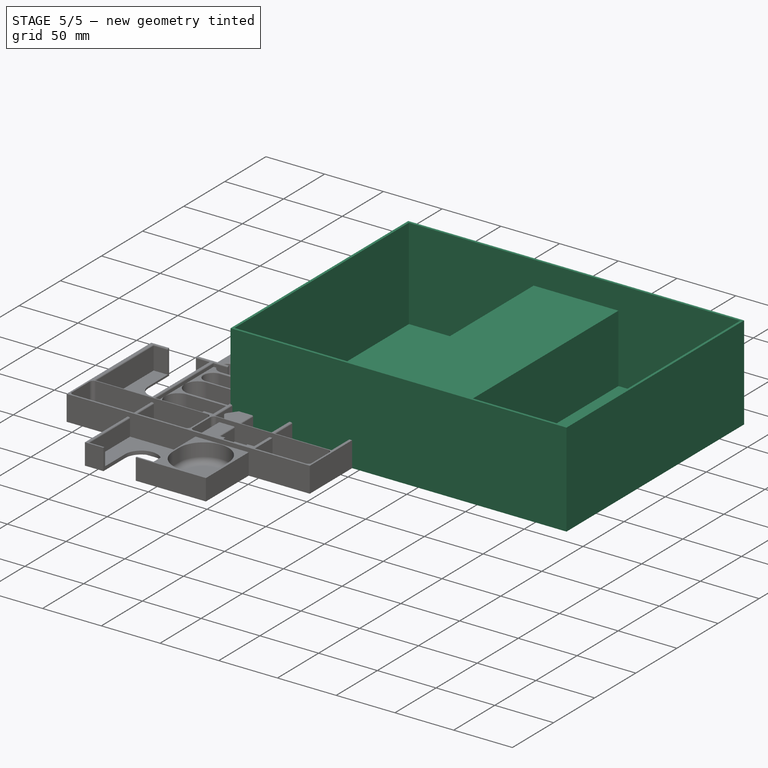
[diagram: stage 5 of 5 — iso view after this stage's code; geometry added in this stage tinted green]
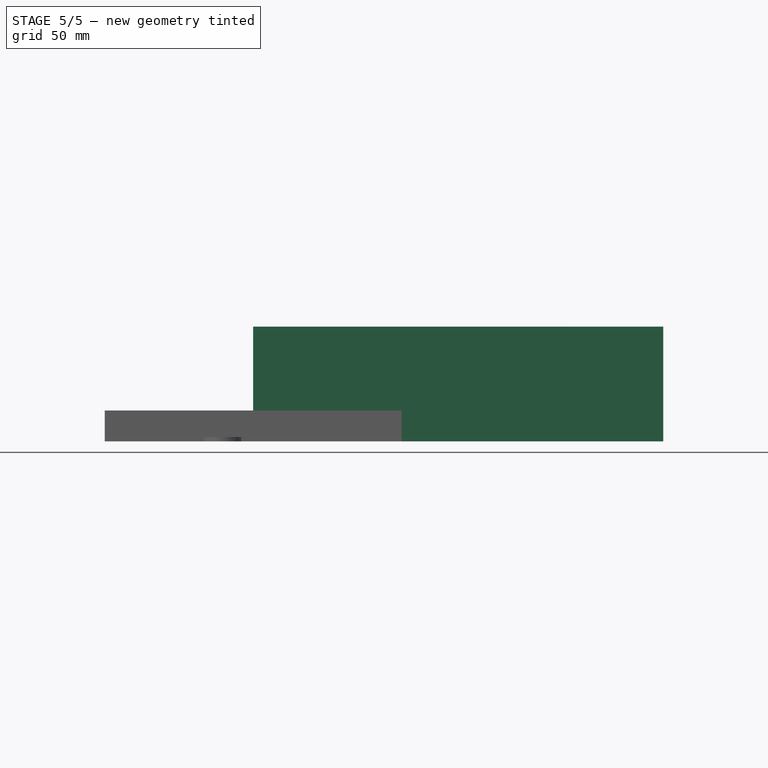
[diagram: stage 5 of 5 — front view after this stage's code; geometry added in this stage tinted green]
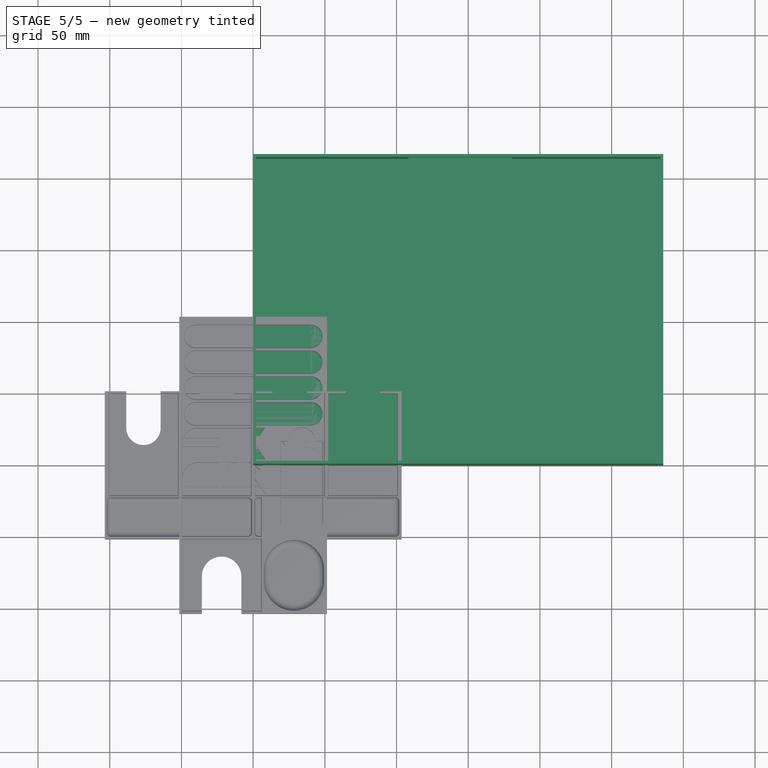
[diagram: stage 5 of 5 — top view after this stage's code; geometry added in this stage tinted green]
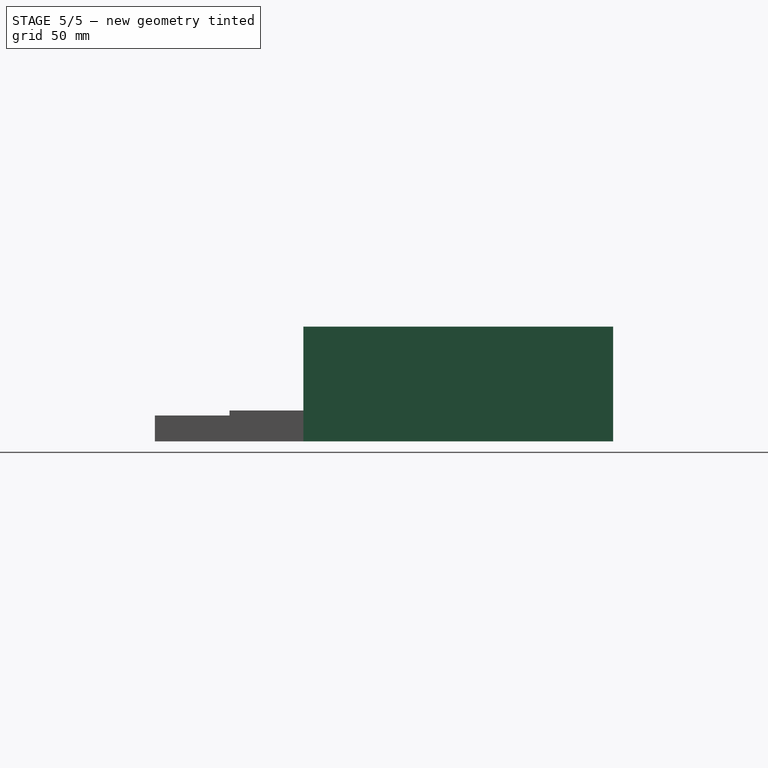
[diagram: stage 5 of 5 — right view after this stage's code; geometry added in this stage tinted green]
FEATURE [Part::Box] Box  label="Cube"
  AttacherType = Attacher::AttachEngine3D
  Height = 2
  Length = 286
  Width = 216
FEATURE [Sketcher::SketchObject] Sketch001
  ExternalGeometry = -> [Box]
  FullyConstrained = false
  MapMode = 5
  Placement = pos=(0,0,2) rot=(0,0,1;0rad)
  Support = -> [Box]
  sketch-geometry (12):
    g0: LineSegment StartX=2 StartY=214 StartZ=0 EndX=284 EndY=214 EndZ=0
    g1: LineSegment StartX=284 StartY=214 StartZ=0 EndX=284 EndY=2 EndZ=0
    g2: LineSegment StartX=284 StartY=2 StartZ=0 EndX=2 EndY=2 EndZ=0
    g3: LineSegment StartX=2 StartY=2 StartZ=0 EndX=2 EndY=214 EndZ=0
    g4: LineSegment StartX=76.1028 StartY=216 StartZ=0 EndX=76.1028 EndY=214 EndZ=0
    g5: LineSegment StartX=0 StartY=84.9282 StartZ=0 EndX=2 EndY=84.9282 EndZ=0
    g6: LineSegment StartX=91.3027 StartY=2 StartZ=0 EndX=91.3027 EndY=0 EndZ=0
    g7: LineSegment StartX=284 StartY=75.7059 StartZ=0 EndX=286 EndY=75.7059 EndZ=0
    g8: LineSegment StartX=0 StartY=216 StartZ=0 EndX=286 EndY=216 EndZ=0
    g9: LineSegment StartX=286 StartY=216 StartZ=0 EndX=286 EndY=0 EndZ=0
    g10: LineSegment StartX=286 StartY=0 StartZ=0 EndX=0 EndY=0 EndZ=0
    g11: LineSegment StartX=0 StartY=0 StartZ=0 EndX=0 EndY=216 EndZ=0
  constraints (34):
    c: Coincident(g0,g1)
    c: Coincident(g1,g2)
    c: Coincident(g2,g3)
    c: Coincident(g3,g0)
    c: Horizontal(g0)
    c: Horizontal(g2)
    c: Vertical(g1)
    c: Vertical(g3)
    c: PointOnObject(g4,g0)
    c: Vertical(g4)
    c: PointOnObject(g5,g-2)
    c: PointOnObject(g5,g3)
    c: PointOnObject(g6,g2)
    c: PointOnObject(g6,g-1)
    c: PointOnObject(g7,g1)
    c: Vertical(g6)
    c: Horizontal(g5)
    c: Horizontal(g7)
    c: DistanceX(g5,g5) = 2
    c: DistanceX(g7,g7) = 2
    c: DistanceY(g4,g4) = 2
    c: DistanceY(g6,g6) = 2
    c: PointOnObject(g4,g-3)
    c: PointOnObject(g7,g-5)
    c: Coincident(g8,g9)
    c: Coincident(g9,g10)
    c: Coincident(g10,g11)
    c: Coincident(g11,g8)
    c: Horizontal(g8)
    c: Horizontal(g10)
    c: Vertical(g9)
    c: Vertical(g11)
    c: Coincident(g8,g-4)
    c: Coincident(g-6,g9)
FEATURE [PartDesign::Pad] Pad
  Direction = (1,1,1)
  Length = 78
  Length2 = 100
  Profile = -> Sketch001
  Type = 0
FEATURE [Sketcher::SketchObject] Sketch
  ExternalGeometry = -> [Pad]
  FullyConstrained = false
  MapMode = 5
  Placement = pos=(0,0,2) rot=(0,0,1;0rad)
  Support = -> [Pad]
  sketch-geometry (6):
    g0: LineSegment StartX=108.23 StartY=216 StartZ=0 EndX=180.368 EndY=216 EndZ=0
    g1: LineSegment StartX=180.368 StartY=216 StartZ=0 EndX=180.368 EndY=0 EndZ=0
    g2: LineSegment StartX=180.368 StartY=0 StartZ=0 EndX=108.23 EndY=0 EndZ=0
    g3: LineSegment StartX=108.23 StartY=0 StartZ=0 EndX=108.23 EndY=216 EndZ=0
    g4: LineSegment StartX=108.23 StartY=96.2901 StartZ=0 EndX=3.22962 EndY=96.2901 EndZ=0
    g5: LineSegment StartX=180.368 StartY=97.4152 StartZ=0 EndX=285.368 EndY=97.4152 EndZ=0
  constraints (16):
    c: Coincident(g0,g1)
    c: Coincident(g1,g2)
    c: Coincident(g2,g3)
    c: Coincident(g3,g0)
    c: Horizontal(g0)
    c: Horizontal(g2)
    c: Vertical(g1)
    c: Vertical(g3)
    c: PointOnObject(g0,g-4)
    c: PointOnObject(g2,g-3)
    c: PointOnObject(g4,g3)
    c: Horizontal(g4)
    c: PointOnObject(g5,g1)
    c: Horizontal(g5)
    c: DistanceX(g4,g4) = 105
    c: DistanceX(g5,g5) = 105
FEATURE [PartDesign::Pad] Pad001
  BaseFeature = -> Pad
  Direction = (1,1,1)
  Length = 58
  Length2 = 100
  Profile = -> Sketch
  Type = 0
FEATURE [Sketcher::SketchObject] Sketch004
  ExternalGeometry = -> [Pocket]
  FullyConstrained = false
  MapMode = 5
  Placement = pos=(0,0,9) rot=(0,0,1;0rad)
  Support = -> [Pocket]
  expr: Constraints[18] = <<TrayDimensions>>.lid_inset
  expr: Constraints[24] = <<TrayDimensions>>.lid_inset
  sketch-geometry (10):
    g0: LineSegment StartX=-51.5 StartY=15 StartZ=0 EndX=51.5 EndY=15 EndZ=0
    g1: LineSegment StartX=51.5 StartY=15 StartZ=0 EndX=51.5 EndY=-15 EndZ=0
    g2: LineSegment StartX=51.5 StartY=-15 StartZ=0 EndX=-51.5 EndY=-15 EndZ=0
    g3: LineSegment StartX=-51.5 StartY=-15 StartZ=0 EndX=-51.5 EndY=15 EndZ=0
    g4: LineSegment StartX=-50.5 StartY=14 StartZ=0 EndX=50.5 EndY=14 EndZ=0
    g5: LineSegment StartX=50.5 StartY=14 StartZ=0 EndX=50.5 EndY=-14 EndZ=0
    g6: LineSegment StartX=50.5 StartY=-14 StartZ=0 EndX=-50.5 EndY=-14 EndZ=0
    g7: LineSegment StartX=-50.5 StartY=-14 StartZ=0 EndX=-50.5 EndY=14 EndZ=0
    g8: LineSegment StartX=-33.9769 StartY=14 StartZ=0 EndX=-33.9769 EndY=15 EndZ=0
    g9: LineSegment StartX=-50.5 StartY=9.4609 StartZ=0 EndX=-51.5 EndY=9.4609 EndZ=0
  constraints (26):
    c: Coincident(g0,g1)
    c: Coincident(g1,g2)
    c: Coincident(g2,g3)
    c: Coincident(g3,g0)
    c: Horizontal(g0)
    c: Horizontal(g2)
    c: Vertical(g1)
    c: Vertical(g3)
    c: Coincident(g0,g-4)
    c: Coincident(g1,g-6)
    c: Coincident(g4,g5)
    c: Coincident(g5,g6)
    c: Coincident(g6,g7)
    c: Coincident(g7,g4)
    c: Horizontal(g6)
    c: Vertical(g5)
    c: PointOnObject(g8,g4)
    c: PointOnObject(g8,g0)
    c: DistanceY(g8,g8) = 1
    c: Vertical(g8)
    c: Symmetric(g4,g6,g-1)
    c: PointOnObject(g9,g7)
    c: PointOnObject(g9,g3)
    c: Horizontal(g9)
    c: DistanceX(g9,g9) = 1
    c: Symmetric(g4,g4,g-2)
FEATURE [PartDesign::Pocket] Pocket001  label="Lid Inset"
  BaseFeature = -> Pocket
  Length = 3
  Length2 = 100
  Profile = -> Sketch004
  Type = 0
FEATURE [Spreadsheet::Sheet] Spreadsheet  label="TrayDimensions"
  cells = A1=Declared Dimensions; A2=trowels_width; B2(trowels_width)=38; A3=trowels_height; B3(trowels_height)=26; A4=goal_token_diameter; B4(goal_token_diameter)=13; A5=coin_diameter; B5(coin_diameter)=25; A6=lid_inset; B6(lid_inset)=1; A7=lid_depth; B7(lid_depth)=3; A8=token_depth; B8(token_depth)=10; A9=floor_thickness; B9(floor_thickness)=2; A10=token_extension; B10(token_extension)=3; A11=tray_width; B11(width)=103; A12=tray height; B12(height)=30; A14=Calculated Dimensions; A15=tray thickness; B15(thickness)==floor_thickness + token_depth - token_extension; A16=pocket depth; B16(pocket_depth)==token_depth - token_extension; A17=lid thickness; B17(lid_thickness)==floor_thickness + token_extension
FEATURE [Sketcher::SketchObject] Sketch005
  FullyConstrained = true
  MapMode = 5
  Support = -> [XY_Plane005]
  expr: Constraints[8] = <<TrayDimensions>>.width
  expr: Constraints[9] = <<TrayDimensions>>.height
  sketch-geometry (4):
    g0: LineSegment StartX=-51.5 StartY=15 StartZ=0 EndX=51.5 EndY=15 EndZ=0
    g1: LineSegment StartX=51.5 StartY=15 StartZ=0 EndX=51.5 EndY=-15 EndZ=0
    g2: LineSegment StartX=51.5 StartY=-15 StartZ=0 EndX=-51.5 EndY=-15 EndZ=0
    g3: LineSegment StartX=-51.5 StartY=-15 StartZ=0 EndX=-51.5 EndY=15 EndZ=0
  constraints (10):
    c: Coincident(g0,g1)
    c: Coincident(g1,g2)
    c: Coincident(g2,g3)
    c: Coincident(g3,g0)
    c: Horizontal(g2)
    c: Vertical(g1)
    c: Symmetric(g0,g0,g-2)
    c: Symmetric(g0,g2,g-1)
    c: DistanceX(g0,g0) = 103
    c: DistanceY(g3,g3) = 30
FEATURE [PartDesign::Pad] Pad003
  Direction = (1,1,1)
  Length = 5
  Length2 = 100
  Profile = -> Sketch005
  Type = 0
  expr: Length = <<TrayDimensions>>.lid_thickness
FEATURE [Sketcher::SketchObject] Sketch006
  FullyConstrained = true
  MapMode = 5
  Placement = pos=(0,0,5) rot=(0,0,1;0rad)
  Support = -> [Pad003]
  expr: Constraints[8] = <<TrayDimensions>>.width - <<TrayDimensions>>.lid_inset * 2
  expr: Constraints[9] = <<TrayDimensions>>.height - <<TrayDimensions>>.lid_inset * 2
  sketch-geometry (4):
    g0: LineSegment StartX=-50.5 StartY=14 StartZ=0 EndX=50.5 EndY=14 EndZ=0
    g1: LineSegment StartX=50.5 StartY=14 StartZ=0 EndX=50.5 EndY=-14 EndZ=0
    g2: LineSegment StartX=50.5 StartY=-14 StartZ=0 EndX=-50.5 EndY=-14 EndZ=0
    g3: LineSegment StartX=-50.5 StartY=-14 StartZ=0 EndX=-50.5 EndY=14 EndZ=0
  constraints (10):
    c: Coincident(g0,g1)
    c: Coincident(g1,g2)
    c: Coincident(g2,g3)
    c: Coincident(g3,g0)
    c: Horizontal(g2)
    c: Vertical(g1)
    c: Symmetric(g0,g2,g-1)
    c: Symmetric(g0,g0,g-2)
    c: DistanceX(g0,g0) = 101
    c: DistanceY(g3,g3) = 28
FEATURE [PartDesign::Pocket] Pocket002
  BaseFeature = -> Pad003
  Length = 3
  Length2 = 100
  Profile = -> Sketch006
  Type = 0
  expr: Length = <<TrayDimensions>>.token_extension
FEATURE [PartDesign::Body] Body002  label="Lid"
  Group = -> [Sketch005,Pad003,Sketch006,Pocket002]
  Origin = -> Origin005
  Placement = pos=(0,0,11) rot=(0,1,0;3.14159rad)
  Tip = -> Pocket002
FEATURE [Sketcher::SketchObject] Sketch007
  ExternalGeometry = -> [Pocket001]
  FullyConstrained = false
  MapMode = 5
  Placement = pos=(0,0,9) rot=(0,0,1;0rad)
  Support = -> [Pocket001]
  sketch-geometry (4):
    g0: LineSegment StartX=47.8976 StartY=5.94855 StartZ=0 EndX=51.5 EndY=5.94855 EndZ=0
    g1: LineSegment StartX=51.5 StartY=5.94855 StartZ=0 EndX=51.5 EndY=-5.94855 EndZ=0
    g2: LineSegment StartX=51.5 StartY=-5.94855 StartZ=0 EndX=47.8976 EndY=-5.94855 EndZ=0
    g3: LineSegment StartX=47.8976 StartY=-5.94855 StartZ=0 EndX=47.8976 EndY=5.94855 EndZ=0
  constraints (9):
    c: Coincident(g0,g1)
    c: Coincident(g1,g2)
    c: Coincident(g2,g3)
    c: Coincident(g3,g0)
    c: Horizontal(g0)
    c: Horizontal(g2)
    c: Vertical(g1)
    c: PointOnObject(g0,g-3)
    c: Symmetric(g0,g2,g-1)
FEATURE [PartDesign::Pocket] Pocket003
  BaseFeature = -> Pocket001
  Length = 10
  Length2 = 100
  Profile = -> Sketch007
  Type = 0
  expr: Length = <<TrayDimensions>>.token_depth
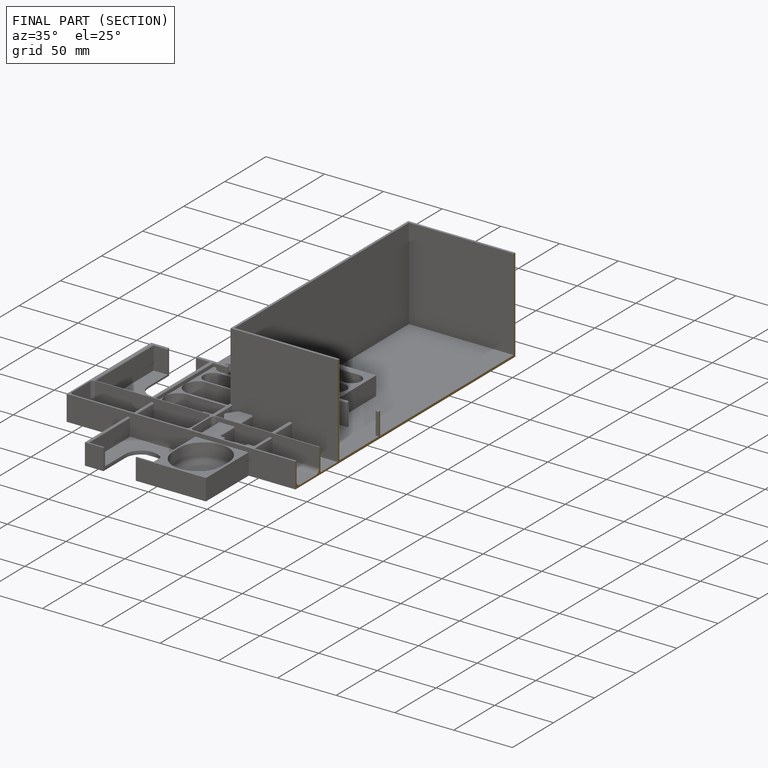
[diagram: finished part — half-section view (interior)]
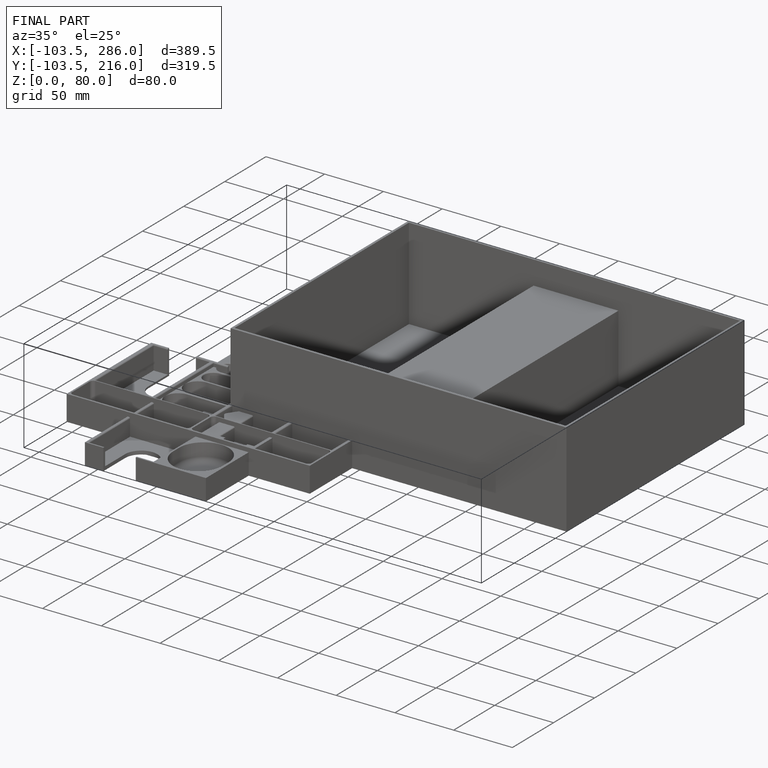
[diagram: finished part — iso view with bounding-box wireframe]
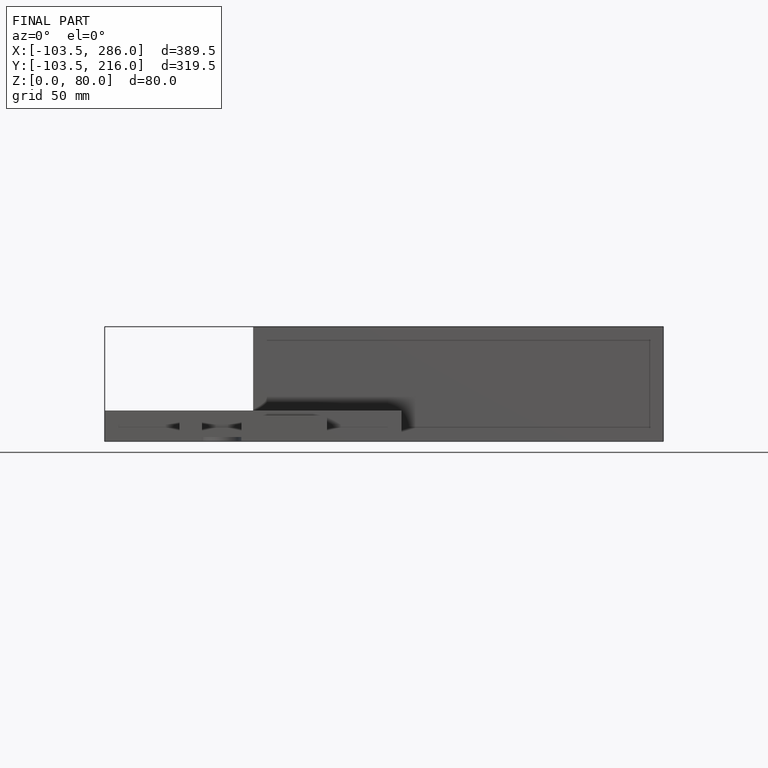
[diagram: finished part — front view with bounding-box wireframe]
